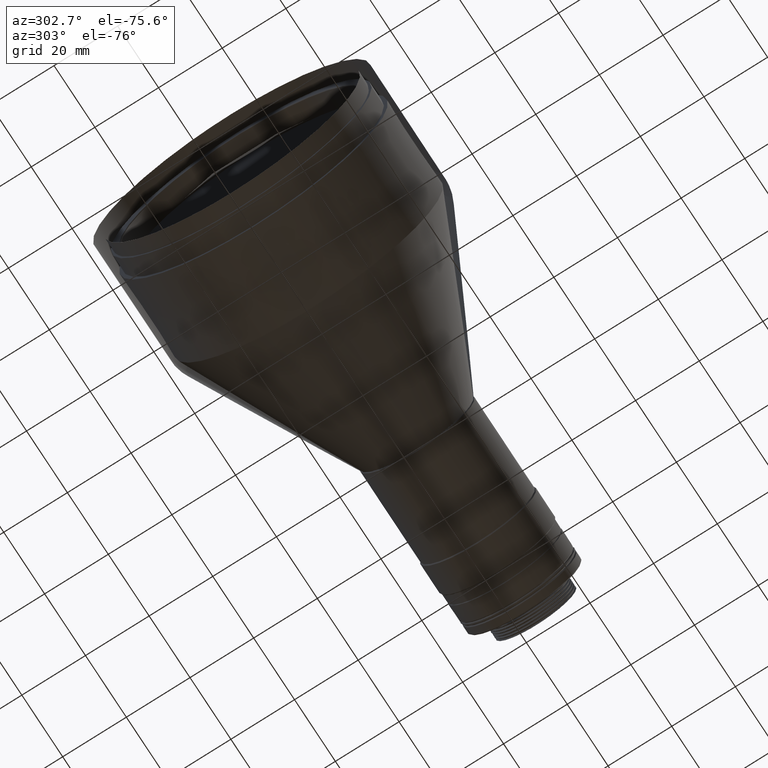
[diagram: clean part render]
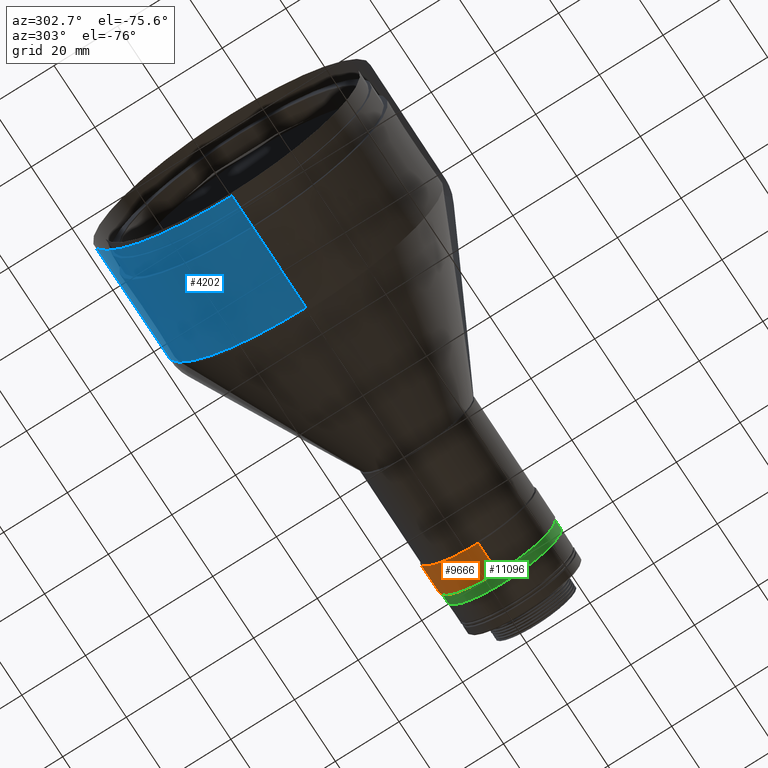
[diagram: same view with three faces highlighted in distinct colors, each labeled with its STEP entity id]
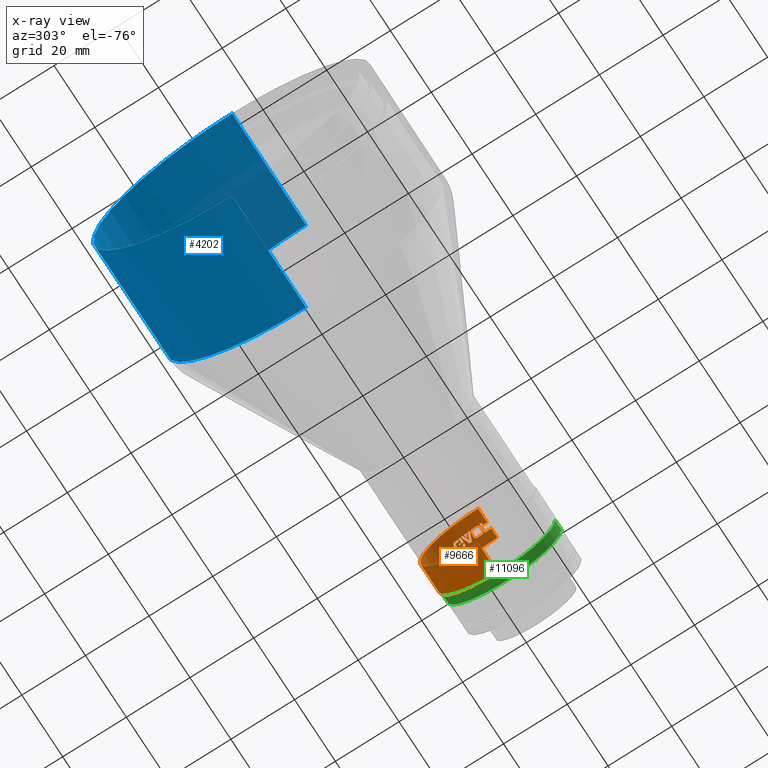
[diagram: x-ray of the same camera — body ghosted, the three highlighted faces saturated]
A machine part, auxiliary view with three faces highlighted in distinct colors.
The next image is the same camera in x-ray (body ghosted, the three faces saturated) — at least one of them is partly hidden behind the body in this view.
Their STEP definitions:

[orange] entity #9666 — the highlighted cylindrical surface (partial cylindrical patch) has radius 18.3 mm, axis along (-1, 0, 0).
#42 = B_SPLINE_CURVE_WITH_KNOTS ( 'NONE', 3,
 ( #12602, #5729, #9702, #17199 ),
 .UNSPECIFIED., .F., .F.,
 ( 4, 4 ),
 ( 0.000000000000000000, 1.000000000000000000 ),
 .UNSPECIFIED. ) ;
#71 = AXIS2_PLACEMENT_3D ( 'NONE', #16042, #13226, #6352 ) ;
#104 = EDGE_CURVE ( 'NONE', #843, #14046, #14184, .T. ) ;
#110 = AXIS2_PLACEMENT_3D ( 'NONE', #4049, #8036, #13561 ) ;
#120 = CARTESIAN_POINT ( 'NONE',  ( 100.7632620795060063, 0.000000000000000000, -164.1114151905999847 ) ) ;
#139 = CARTESIAN_POINT ( 'NONE',  ( 102.8743018644679950, 8.528150323485460760, -147.9199255395949990 ) ) ;
#151 = ORIENTED_EDGE ( 'NONE', *, *, #15214, .T. ) ;
#171 = EDGE_CURVE ( 'NONE', #1035, #7588, #17414, .T. ) ;
#177 = LINE ( 'NONE', #13703, #7770 ) ;
#194 = CARTESIAN_POINT ( 'NONE',  ( 102.6118750167230047, 10.29167852791900017, -148.9795937223560145 ) ) ;
#281 = CARTESIAN_POINT ( 'NONE',  ( 100.1089844205969968, 7.189930660093979853, -147.2830196312179964 ) ) ;
#288 = DIRECTION ( 'NONE',  ( 1.000000000000000000, 0.000000000000000000, 0.000000000000000000 ) ) ;
#289 = CARTESIAN_POINT ( 'NONE',  ( 100.0964237283589995, 8.390223324382139580, -147.8480914516069902 ) ) ;
#377 = EDGE_CURVE ( 'NONE', #4686, #3876, #5925, .T. ) ;
#384 = VECTOR ( 'NONE', #16121, 1000.000000000000000 ) ;
#390 = EDGE_LOOP ( 'NONE', ( #2038, #17502, #14480, #11624, #5679, #10705, #4203, #13072, #12017, #2115, #7776, #14713, #17401, #10926, #1613, #13952, #13956, #11203, #3936, #3910, #11891, #2723, #15824, #7506, #7697, #14281, #16492, #3537, #639, #15063, #11163, #1993, #1504, #4459, #13444, #5198, #601, #151, #13745, #4707, #6434, #10196, #3749, #4262, #14922, #13382, #5724, #4113 ) ) ;
#404 = DIRECTION ( 'NONE',  ( 0.000000000000000000, 1.000000000000000000, 0.000000000000000000 ) ) ;
#422 = CARTESIAN_POINT ( 'NONE',  ( 102.2467579689899964, 8.709888326082769083, -148.0170731615770023 ) ) ;
#425 = ORIENTED_EDGE ( 'NONE', *, *, #2554, .F. ) ;
#505 = CARTESIAN_POINT ( 'NONE',  ( 100.1916335592290039, 10.10985802576269776, -148.8574712567010181 ) ) ;
#601 = ORIENTED_EDGE ( 'NONE', *, *, #6723, .F. ) ;
#611 = B_SPLINE_CURVE_WITH_KNOTS ( 'NONE', 3,
 ( #2748, #6748, #12270, #17787, #13801, #12528, #13538 ),
 .UNSPECIFIED., .F., .F.,
 ( 4, 3, 4 ),
 ( 0.000000000000000000, 0.5371044954788599668, 1.000000000000000000 ),
 .UNSPECIFIED. ) ;
#625 = EDGE_CURVE ( 'NONE', #759, #16035, #13048, .T. ) ;
#639 = ORIENTED_EDGE ( 'NONE', *, *, #2388, .F. ) ;
#646 = ORIENTED_EDGE ( 'NONE', *, *, #4485, .F. ) ;
#695 = LINE ( 'NONE', #2343, #12071 ) ;
#701 = DIRECTION ( 'NONE',  ( 0.000000000000000000, 0.000000000000000000, -1.000000000000000000 ) ) ;
#705 = DIRECTION ( 'NONE',  ( -1.000000000000000000, 0.000000000000000000, 0.000000000000000000 ) ) ;
#727 = VERTEX_POINT ( 'NONE', #988 ) ;
#757 = EDGE_CURVE ( 'NONE', #16893, #2960, #12413, .T. ) ;
#759 = VERTEX_POINT ( 'NONE', #11489 ) ;
#795 = CARTESIAN_POINT ( 'NONE',  ( 100.1198213330409885, 4.519559256768309830, -146.3780291060450054 ) ) ;
#828 = VERTEX_POINT ( 'NONE', #15582 ) ;
#843 = VERTEX_POINT ( 'NONE', #15396 ) ;
#848 = CARTESIAN_POINT ( 'NONE',  ( 100.7186355224200014, 9.511258629570690459, -148.4772871598649999 ) ) ;
#850 = EDGE_CURVE ( 'NONE', #1365, #895, #6573, .T. ) ;
#873 = B_SPLINE_CURVE_WITH_KNOTS ( 'NONE', 3,
 ( #1672, #4571, #12808, #3299, #12543, #15359, #10099 ),
 .UNSPECIFIED., .F., .F.,
 ( 4, 3, 4 ),
 ( 0.000000000000000000, 0.7526771078445499974, 1.000000000000000000 ),
 .UNSPECIFIED. ) ;
#883 = CARTESIAN_POINT ( 'NONE',  ( 101.0448635702319962, 10.44140764673980115, -149.0825427658290039 ) ) ;
#895 = VERTEX_POINT ( 'NONE', #10303 ) ;
#898 = CARTESIAN_POINT ( 'NONE',  ( 100.7280848985249975, 2.134636950281200374, -145.9363409104080063 ) ) ;
#899 = CARTESIAN_POINT ( 'NONE',  ( 100.8697853588460021, 5.062855839229440491, -146.5256956663790220 ) ) ;
#988 = CARTESIAN_POINT ( 'NONE',  ( 100.7632620795060063, 1.331704470869410128, -145.8599340670780009 ) ) ;
#989 = CARTESIAN_POINT ( 'NONE',  ( 102.7425010441759952, 10.16824569376739795, -148.8963969680939954 ) ) ;
#1005 = CARTESIAN_POINT ( 'NONE',  ( 102.3922387243129890, 5.008360828531480458, -146.5100686046539806 ) ) ;
#1008 = ORIENTED_EDGE ( 'NONE', *, *, #12978, .F. ) ;
#1021 = CARTESIAN_POINT ( 'NONE',  ( 100.7216978019200013, 9.605967678771829554, -148.5352354824769918 ) ) ;
#1035 = VERTEX_POINT ( 'NONE', #3605 ) ;
#1082 = AXIS2_PLACEMENT_3D ( 'NONE', #12575, #16760, #4335 ) ;
#1092 = CARTESIAN_POINT ( 'NONE',  ( 100.3562033931540043, 7.978667687339940251, -147.6423264997960132 ) ) ;
#1124 = VERTEX_POINT ( 'NONE', #2696 ) ;
#1128 = EDGE_CURVE ( 'NONE', #15679, #843, #10860, .T. ) ;
#1129 = CARTESIAN_POINT ( 'NONE',  ( 102.7747051612779927, 4.680447156109570628, -146.4200779200920124 ) ) ;
#1140 = CARTESIAN_POINT ( 'NONE',  ( 100.0989479097609944, 9.828574037927699791, -148.6746140126890054 ) ) ;
#1145 = VERTEX_POINT ( 'NONE', #13749 ) ;
#1149 = CARTESIAN_POINT ( 'NONE',  ( 101.9646573933180065, 9.891853714650089557, -148.7152718394889916 ) ) ;
#1159 = CARTESIAN_POINT ( 'NONE',  ( 102.5586108909060101, 4.922911562353800008, -146.4860090463649840 ) ) ;
#1168 = CARTESIAN_POINT ( 'NONE',  ( 100.2398215683770104, 2.410441740576969583, -145.9708592284669919 ) ) ;
#1187 = CARTESIAN_POINT ( 'NONE',  ( 102.5586108909060101, 4.922911562353800008, -146.4860090463649840 ) ) ;
#1199 = VERTEX_POINT ( 'NONE', #11117 ) ;
#1214 = EDGE_CURVE ( 'NONE', #895, #12228, #5261, .T. ) ;
#1239 = CARTESIAN_POINT ( 'NONE',  ( 100.1560619331730067, 4.613370965392369349, -146.4024680639160181 ) ) ;
#1283 = CARTESIAN_POINT ( 'NONE',  ( 102.6845438670549981, 2.402258260651429556, -145.9697451099260093 ) ) ;
#1287 = EDGE_CURVE ( 'NONE', #14046, #9574, #5893, .T. ) ;
#1293 = CARTESIAN_POINT ( 'NONE',  ( 102.1917843741890124, 10.43256405716019941, -149.0764014220119975 ) ) ;
#1294 = B_SPLINE_CURVE_WITH_KNOTS ( 'NONE', 3,
 ( #6609, #17473, #8293, #7963, #13828, #13910, #3799 ),
 .UNSPECIFIED., .F., .F.,
 ( 4, 3, 4 ),
 ( 0.000000000000000000, 0.6905070336917880081, 1.000000000000000000 ),
 .UNSPECIFIED. ) ;
#1312 = EDGE_CURVE ( 'NONE', #10129, #4016, #12080, .T. ) ;
#1314 = CARTESIAN_POINT ( 'NONE',  ( 100.5384541288199927, 7.928597962532109911, -147.6181640147850089 ) ) ;
#1343 = CARTESIAN_POINT ( 'NONE',  ( 100.8621961041399828, 2.118835802793479939, -145.9344850878260047 ) ) ;
#1345 = DIRECTION ( 'NONE',  ( 0.000000000000000000, 0.5060578326733441434, 0.8624995478201468169 ) ) ;
#1365 = VERTEX_POINT ( 'NONE', #14637 ) ;
#1384 = VERTEX_POINT ( 'NONE', #17440 ) ;
#1387 = CARTESIAN_POINT ( 'NONE',  ( 102.1243072040730056, 10.43858065948589875, -149.0805789980220197 ) ) ;
#1504 = ORIENTED_EDGE ( 'NONE', *, *, #14749, .F. ) ;
#1511 = CARTESIAN_POINT ( 'NONE',  ( 101.0278913623160122, 7.514458924936579187, -147.4216755592690049 ) ) ;
#1513 = CARTESIAN_POINT ( 'NONE',  ( 101.8100518647509887, 9.910718684121999189, -148.7274087175059947 ) ) ;
#1558 = CARTESIAN_POINT ( 'NONE',  ( 100.9725467237539931, 9.901934156143989085, -148.7217517768289667 ) ) ;
#1559 = CARTESIAN_POINT ( 'NONE',  ( 102.0926756618369922, 8.489245325024690203, -147.8996073391739969 ) ) ;
#1599 = CARTESIAN_POINT ( 'NONE',  ( 101.9467981822899958, 7.191201402513899055, -147.2798637385010352 ) ) ;
#1610 = CYLINDRICAL_SURFACE ( 'NONE', #1082, 18.30000000000001137 ) ;
#1613 = ORIENTED_EDGE ( 'NONE', *, *, #17269, .T. ) ;
#1641 = DIRECTION ( 'NONE',  ( 0.000000000000000000, 0.3786747113300981127, 0.9255298282600441517 ) ) ;
#1650 = ORIENTED_EDGE ( 'NONE', *, *, #16280, .F. ) ;
#1672 = CARTESIAN_POINT ( 'NONE',  ( 100.1394311975259939, 8.222536285641409037, -147.7627180855919846 ) ) ;
#1686 = VERTEX_POINT ( 'NONE', #3381 ) ;
#1699 = DIRECTION ( 'NONE',  ( -1.000000000000000000, 0.000000000000000000, 0.000000000000000000 ) ) ;
#1712 = CARTESIAN_POINT ( 'NONE',  ( 100.5716284828170046, 5.027530739406910421, -146.5155652632930128 ) ) ;
#1728 = CARTESIAN_POINT ( 'NONE',  ( 101.8218432512140055, 6.579976963771860810, -147.0352943443350284 ) ) ;
#1774 = CARTESIAN_POINT ( 'NONE',  ( 105.7747024799580089, 0.000000000000000000, -164.1114151905999847 ) ) ;
#1779 = CARTESIAN_POINT ( 'NONE',  ( 102.5901189576400014, 7.989846973555489562, -147.6477204817949769 ) ) ;
#1812 = EDGE_CURVE ( 'NONE', #13519, #1035, #42, .T. ) ;
#1836 = VERTEX_POINT ( 'NONE', #2832 ) ;
#1868 = EDGE_CURVE ( 'NONE', #9410, #9081, #10932, .T. ) ;
#1872 =( BOUNDED_CURVE ( )  B_SPLINE_CURVE ( 3, ( #9629, #15164, #11267, #16796 ),
 .UNSPECIFIED., .F., .T. ) 
 B_SPLINE_CURVE_WITH_KNOTS ( ( 4, 4 ),
 ( 0.01574231789891546163, 0.02169292536751399672 ),
 .UNSPECIFIED. ) 
 CURVE ( )  GEOMETRIC_REPRESENTATION_ITEM ( )  RATIONAL_B_SPLINE_CURVE ( ( 1.000000000000000000, 0.9999970491914063064, 0.9999970491914063064, 1.000000000000000000 ) ) 
 REPRESENTATION_ITEM ( '' )  );
#1888 = CARTESIAN_POINT ( 'NONE',  ( 102.4845537787170002, 7.934491165200278751, -147.6209969087659886 ) ) ;
#1913 = VERTEX_POINT ( 'NONE', #10405 ) ;
#1973 = B_SPLINE_CURVE_WITH_KNOTS ( 'NONE', 3,
 ( #13377, #5234, #16287, #3870, #13565, #1140, #6495, #12205, #4874, #12015 ),
 .UNSPECIFIED., .F., .F.,
 ( 4, 3, 3, 4 ),
 ( 0.000000000000000000, 0.4434636792968669750, 0.8865889774311809246, 1.000000000000000000 ),
 .UNSPECIFIED. ) ;
#1993 = ORIENTED_EDGE ( 'NONE', *, *, #1812, .F. ) ;
#2022 = EDGE_CURVE ( 'NONE', #13474, #16443, #3723, .T. ) ;
#2038 = ORIENTED_EDGE ( 'NONE', *, *, #13593, .F. ) ;
#2096 = CARTESIAN_POINT ( 'NONE',  ( 100.1691920007129966, 2.523808301357460149, -145.9861557601660138 ) ) ;
#2109 = CARTESIAN_POINT ( 'NONE',  ( 101.1613430208689977, 9.910718684121999189, -148.7274087175059947 ) ) ;
#2114 = CARTESIAN_POINT ( 'NONE',  ( 100.7280848985249975, 2.134636950281200374, -145.9363409104080063 ) ) ;
#2115 = ORIENTED_EDGE ( 'NONE', *, *, #3862, .F. ) ;
#2140 = EDGE_CURVE ( 'NONE', #4174, #727, #11215, .T. ) ;
#2180 = B_SPLINE_CURVE_WITH_KNOTS ( 'NONE', 3,
 ( #16678, #7165, #8249, #5540, #8522, #2995 ),
 .UNSPECIFIED., .F., .F.,
 ( 4, 2, 4 ),
 ( -0.1835193028626630196, -0.09175965142959678633, 0.000000000000000000 ),
 .UNSPECIFIED. ) ;
#2221 = CARTESIAN_POINT ( 'NONE',  ( 100.7665071087909894, 9.761957752274248890, -148.6325851042269903 ) ) ;
#2249 = B_SPLINE_CURVE_WITH_KNOTS ( 'NONE', 3,
 ( #9780, #15316, #9512, #11140, #8427, #6716, #13946 ),
 .UNSPECIFIED., .F., .F.,
 ( 4, 3, 4 ),
 ( 0.000000000000000000, 0.5186201318372160030, 1.000000000000000000 ),
 .UNSPECIFIED. ) ;
#2250 = VECTOR ( 'NONE', #288, 1000.000000000000000 ) ;
#2267 = AXIS2_PLACEMENT_3D ( 'NONE', #9077, #3368, #7717 ) ;
#2297 = CARTESIAN_POINT ( 'NONE',  ( 102.1644921040879979, 2.130717825119339714, -145.9358810430239828 ) ) ;
#2343 = CARTESIAN_POINT ( 'NONE',  ( 101.9473854950080067, 5.087292775175139781, -146.5327505024150128 ) ) ;
#2369 = CARTESIAN_POINT ( 'NONE',  ( 102.2467579689899964, 9.467700806679069103, -148.4508710929250128 ) ) ;
#2378 = CARTESIAN_POINT ( 'NONE',  ( 100.4525042233089920, 2.205789160063599930, -145.9448071472329787 ) ) ;
#2388 = EDGE_CURVE ( 'NONE', #3016, #17303, #8286, .T. ) ;
#2394 = ORIENTED_EDGE ( 'NONE', *, *, #10550, .T. ) ;
#2407 = CIRCLE ( 'NONE', #71, 18.30000000000000071 ) ;
#2431 = CARTESIAN_POINT ( 'NONE',  ( 101.9508752777189926, 8.470322409416390030, -147.8897124969699917 ) ) ;
#2459 = AXIS2_PLACEMENT_3D ( 'NONE', #14946, #4983, #7882 ) ;
#2467 = CARTESIAN_POINT ( 'NONE',  ( 100.6297812408240020, 2.149340161942709493, -145.9380706273029773 ) ) ;
#2528 = DIRECTION ( 'NONE',  ( -1.000000000000000000, 0.000000000000000000, 0.000000000000000000 ) ) ;
#2554 = EDGE_CURVE ( 'NONE', #4740, #10257, #3489, .T. ) ;
#2583 = CARTESIAN_POINT ( 'NONE',  ( 102.8144481100179917, 2.645752216615020025, -146.0036195866919684 ) ) ;
#2590 = VERTEX_POINT ( 'NONE', #17074 ) ;
#2622 = EDGE_CURVE ( 'NONE', #1836, #9094, #873, .T. ) ;
#2625 = EDGE_CURVE ( 'NONE', #15258, #727, #3022, .T. ) ;
#2627 = DIRECTION ( 'NONE',  ( -1.000000000000000000, 0.000000000000000000, 0.000000000000000000 ) ) ;
#2639 = FACE_BOUND ( 'NONE', #12370, .T. ) ;
#2657 = VERTEX_POINT ( 'NONE', #14534 ) ;
#2660 = ORIENTED_EDGE ( 'NONE', *, *, #2775, .T. ) ;
#2672 = CARTESIAN_POINT ( 'NONE',  ( 102.8254844943949990, 2.700047652756349947, -146.0115918516640079 ) ) ;
#2684 = CARTESIAN_POINT ( 'NONE',  ( 100.7665071087909894, 9.761957752274248890, -148.6325851042269903 ) ) ;
#2696 = CARTESIAN_POINT ( 'NONE',  ( 101.1674839823859884, 8.470322409416379372, -147.8897124969699917 ) ) ;
#2719 = VERTEX_POINT ( 'NONE', #4751 ) ;
#2723 = ORIENTED_EDGE ( 'NONE', *, *, #8968, .F. ) ;
#2732 = ORIENTED_EDGE ( 'NONE', *, *, #10259, .F. ) ;
#2748 = CARTESIAN_POINT ( 'NONE',  ( 102.2467579689899964, 8.709888326082769083, -148.0170731615770023 ) ) ;
#2765 = CARTESIAN_POINT ( 'NONE',  ( 100.3666467736530024, 7.974605387554849933, -147.6403597018710059 ) ) ;
#2775 = EDGE_CURVE ( 'NONE', #3268, #2657, #16193, .T. ) ;
#2810 = CARTESIAN_POINT ( 'NONE',  ( 102.8420409635349984, 0.000000000000000000, -164.1114151905999847 ) ) ;
#2824 = EDGE_LOOP ( 'NONE', ( #12472, #2394, #11679, #11715, #11014, #12620, #13453, #2732, #11013, #425, #11753 ) ) ;
#2832 = CARTESIAN_POINT ( 'NONE',  ( 100.1394311975259939, 8.222536285641409037, -147.7627180855919846 ) ) ;
#2885 = CARTESIAN_POINT ( 'NONE',  ( 100.1560619331730067, 4.613370965392369349, -146.4024680639160181 ) ) ;
#2939 = CARTESIAN_POINT ( 'NONE',  ( 102.7425010441759952, 10.16824569376739795, -148.8963969680939954 ) ) ;
#2955 = EDGE_CURVE ( 'NONE', #7266, #7075, #7793, .T. ) ;
#2960 = VERTEX_POINT ( 'NONE', #16700 ) ;
#2967 = CARTESIAN_POINT ( 'NONE',  ( 102.5334093284119916, 2.266419169477470241, -145.9523033139630002 ) ) ;
#2989 = CARTESIAN_POINT ( 'NONE',  ( 100.4805188711810047, 4.991123929021879846, -146.5051784294859942 ) ) ;
#2995 = CARTESIAN_POINT ( 'NONE',  ( 100.1089844203950037, 5.716170716601729929, -146.7270718800619989 ) ) ;
#3012 = VECTOR ( 'NONE', #2528, 1000.000000000000000 ) ;
#3016 = VERTEX_POINT ( 'NONE', #8982 ) ;
#3022 = CIRCLE ( 'NONE', #3306, 18.29999999999999361 ) ;
#3056 = CARTESIAN_POINT ( 'NONE',  ( 102.8749322044140087, 8.581766233005659217, -147.9483929384950045 ) ) ;
#3098 = CIRCLE ( 'NONE', #14678, 18.29999999999998650 ) ;
#3100 = CARTESIAN_POINT ( 'NONE',  ( 101.8218432512140055, 6.579976963771860810, -147.0352943443350284 ) ) ;
#3104 = EDGE_CURVE ( 'NONE', #17244, #15099, #5120, .T. ) ;
#3149 = CARTESIAN_POINT ( 'NONE',  ( 102.2213097352689886, 9.689098918384971171, -148.5868573302730340 ) ) ;
#3201 = VERTEX_POINT ( 'NONE', #12327 ) ;
#3231 = CARTESIAN_POINT ( 'NONE',  ( 102.4976999873420027, 7.940545731388700013, -147.6239128482890237 ) ) ;
#3245 = VECTOR ( 'NONE', #12186, 1000.000000000000114 ) ;
#3252 = CARTESIAN_POINT ( 'NONE',  ( 101.1432106362680088, 2.108736188243430121, -145.9333176089389781 ) ) ;
#3268 = VERTEX_POINT ( 'NONE', #14225 ) ;
#3272 = EDGE_CURVE ( 'NONE', #7080, #15815, #17853, .T. ) ;
#3283 = CARTESIAN_POINT ( 'NONE',  ( 102.8750899860199866, 8.607466185311011486, -147.9620645575639912 ) ) ;
#3299 = CARTESIAN_POINT ( 'NONE',  ( 100.2104349188180095, 8.097829905905479464, -147.7005909938989987 ) ) ;
#3306 = AXIS2_PLACEMENT_3D ( 'NONE', #120, #5664, #11283 ) ;
#3327 = CARTESIAN_POINT ( 'NONE',  ( 105.7747024799580089, 0.000000000000000000, -145.8114151906316351 ) ) ;
#3337 = CARTESIAN_POINT ( 'NONE',  ( 102.4976999873420027, 7.940545731388700013, -147.6239128482890237 ) ) ;
#3368 = DIRECTION ( 'NONE',  ( -0.3637999292795229822, -0.8665715851796457203, 0.3416186458837549567 ) ) ;
#3378 = CARTESIAN_POINT ( 'NONE',  ( 100.6616744256339899, 7.910027601422580545, -147.6092490781560116 ) ) ;
#3381 = CARTESIAN_POINT ( 'NONE',  ( 102.8362902746169993, 10.00311057268029913, -148.7873237372470214 ) ) ;
#3395 = EDGE_CURVE ( 'NONE', #10257, #2719, #3098, .T. ) ;
#3419 = VECTOR ( 'NONE', #13962, 1000.000000000000000 ) ;
#3469 = EDGE_CURVE ( 'NONE', #14753, #8177, #1294, .T. ) ;
#3489 = B_SPLINE_CURVE_WITH_KNOTS ( 'NONE', 3,
 ( #5926, #4302, #14351, #4476 ),
 .UNSPECIFIED., .F., .F.,
 ( 4, 4 ),
 ( 0.9872417564918244404, 1.000000000000000000 ),
 .UNSPECIFIED. ) ;
#3526 = CARTESIAN_POINT ( 'NONE',  ( 100.9346984426180001, 10.43663338147029940, -149.0792224955579854 ) ) ;
#3537 = ORIENTED_EDGE ( 'NONE', *, *, #3949, .T. ) ;
#3547 = CARTESIAN_POINT ( 'NONE',  ( 100.8409893161449986, 8.480525085782490535, -147.8950391719339734 ) ) ;
#3558 = CARTESIAN_POINT ( 'NONE',  ( 100.6765135203169876, 2.140877584352599783, -145.9370738641160017 ) ) ;
#3587 = DIRECTION ( 'NONE',  ( 0.004361628967964821350, 0.3418958823302709060, 0.9397277168618319854 ) ) ;
#3605 = CARTESIAN_POINT ( 'NONE',  ( 101.1614825881759856, 7.899276877950119236, -147.6041009085770099 ) ) ;
#3609 = CARTESIAN_POINT ( 'NONE',  ( 101.9473854950080067, 5.087292775175139781, -146.5327505024150128 ) ) ;
#3619 = CARTESIAN_POINT ( 'NONE',  ( 102.6468043984570073, 4.850505445489539547, -146.4659456042370209 ) ) ;
#3626 = VERTEX_POINT ( 'NONE', #14355 ) ;
#3632 = B_SPLINE_CURVE_WITH_KNOTS ( 'NONE', 3,
 ( #8462, #17796, #11091, #7013, #6756, #15259, #2939 ),
 .UNSPECIFIED., .F., .F.,
 ( 4, 3, 4 ),
 ( 0.000000000000000000, 0.6164676995987690145, 1.000000000000000000 ),
 .UNSPECIFIED. ) ;
#3645 = CARTESIAN_POINT ( 'NONE',  ( 101.8649553843520010, 2.108736188243430121, -145.9333176089389781 ) ) ;
#3680 = CARTESIAN_POINT ( 'NONE',  ( 101.9802177140630022, 5.087219913633290069, -146.5327294161720033 ) ) ;
#3698 = CIRCLE ( 'NONE', #5136, 18.29999999999999716 ) ;
#3723 = B_SPLINE_CURVE_WITH_KNOTS ( 'NONE', 3,
 ( #3884, #9314, #9228, #17466 ),
 .UNSPECIFIED., .F., .F.,
 ( 4, 4 ),
 ( 0.000000000000000000, 1.000000000000000000 ),
 .UNSPECIFIED. ) ;
#3743 = CIRCLE ( 'NONE', #6915, 18.30000000000001137 ) ;
#3749 = ORIENTED_EDGE ( 'NONE', *, *, #12956, .F. ) ;
#3765 = CARTESIAN_POINT ( 'NONE',  ( 100.7540124293969939, 9.738879019928479153, -148.6180541790180030 ) ) ;
#3799 = CARTESIAN_POINT ( 'NONE',  ( 102.8485721976509950, 8.336173842669891698, -147.8203683959710020 ) ) ;
#3800 = CARTESIAN_POINT ( 'NONE',  ( 100.7223085517739918, 8.652292102834600485, -147.9859989603979784 ) ) ;
#3830 = CIRCLE ( 'NONE', #7880, 18.30000000000000071 ) ;
#3835 = CARTESIAN_POINT ( 'NONE',  ( 102.7425472949400103, 2.478736438250449758, -145.9800648363190021 ) ) ;
#3843 = ORIENTED_EDGE ( 'NONE', *, *, #3104, .T. ) ;
#3846 = CARTESIAN_POINT ( 'NONE',  ( 102.2529273239980085, 10.42195112863590012, -149.0690303141159632 ) ) ;
#3850 = EDGE_CURVE ( 'NONE', #9729, #9035, #611, .T. ) ;
#3862 = EDGE_CURVE ( 'NONE', #17190, #1365, #12706, .T. ) ;
#3870 = CARTESIAN_POINT ( 'NONE',  ( 100.1181691182290052, 9.937217670885569731, -148.7445122833310336 ) ) ;
#3876 = VERTEX_POINT ( 'NONE', #15521 ) ;
#3884 = CARTESIAN_POINT ( 'NONE',  ( 102.5567369582889938, 10.32378084937209906, -149.0014996059869929 ) ) ;
#3896 = ORIENTED_EDGE ( 'NONE', *, *, #14293, .F. ) ;
#3900 = CARTESIAN_POINT ( 'NONE',  ( 101.3099226159989996, 6.448242953780940034, -146.9851148659820126 ) ) ;
#3908 = EDGE_CURVE ( 'NONE', #14259, #13474, #5603, .T. ) ;
#3910 = ORIENTED_EDGE ( 'NONE', *, *, #16510, .F. ) ;
#3933 = CARTESIAN_POINT ( 'NONE',  ( 101.1674839823859884, 9.260858337922210026, -148.3276734654909887 ) ) ;
#3936 = ORIENTED_EDGE ( 'NONE', *, *, #1128, .F. ) ;
#3947 = VECTOR ( 'NONE', #14100, 1000.000000000000000 ) ;
#3949 = EDGE_CURVE ( 'NONE', #1124, #17303, #3698, .T. ) ;
#4016 = VERTEX_POINT ( 'NONE', #3900 ) ;
#4049 = CARTESIAN_POINT ( 'NONE',  ( 101.3099226159989996, 0.000000000000000000, -164.1114151905999847 ) ) ;
#4050 = CARTESIAN_POINT ( 'NONE',  ( 101.0278913676430079, 5.388391726655820335, -146.6189785063699844 ) ) ;
#4059 = EDGE_CURVE ( 'NONE', #11771, #13994, #695, .T. ) ;
#4067 = B_SPLINE_CURVE_WITH_KNOTS ( 'NONE', 3,
 ( #10733, #15094, #16457, #9642, #8284, #14824, #1129, #15181, #6842, #13729 ),
 .UNSPECIFIED., .F., .F.,
 ( 4, 3, 3, 4 ),
 ( 0.000000000000000000, 0.4357707669419049745, 0.8718250801742020162, 1.000000000000000000 ),
 .UNSPECIFIED. ) ;
#4076 = EDGE_CURVE ( 'NONE', #9684, #15805, #4959, .T. ) ;
#4113 = ORIENTED_EDGE ( 'NONE', *, *, #3908, .F. ) ;
#4139 = CARTESIAN_POINT ( 'NONE',  ( 100.8838832141489945, 9.872909186747149235, -148.7031166411090055 ) ) ;
#4165 = CARTESIAN_POINT ( 'NONE',  ( 101.1674839823859884, 0.000000000000000000, -164.1114151905999847 ) ) ;
#4174 = VERTEX_POINT ( 'NONE', #13750 ) ;
#4201 = B_SPLINE_CURVE_WITH_KNOTS ( 'NONE', 3,
 ( #5704, #8697, #10223, #1712, #5969, #2989, #7246, #11494, #17034, #10049 ),
 .UNSPECIFIED., .F., .F.,
 ( 4, 3, 3, 4 ),
 ( 0.000000000000000000, 0.3959766093915469964, 0.7919420350095109917, 1.000000000000000000 ),
 .UNSPECIFIED. ) ;
#4203 = ORIENTED_EDGE ( 'NONE', *, *, #10143, .F. ) ;
#4218 = CARTESIAN_POINT ( 'NONE',  ( 100.3666467736530024, 7.974605387554849933, -147.6403597018710059 ) ) ;
#4242 = VERTEX_POINT ( 'NONE', #1239 ) ;
#4262 = ORIENTED_EDGE ( 'NONE', *, *, #9593, .F. ) ;
#4280 = CARTESIAN_POINT ( 'NONE',  ( 102.1077316497200087, 8.493706322637901707, -147.9019437723600277 ) ) ;
#4284 = CARTESIAN_POINT ( 'NONE',  ( 102.6740709105509950, 10.24237594981569899, -148.9461630571359763 ) ) ;
#4302 = CARTESIAN_POINT ( 'NONE',  ( 102.8198936316461385, 0.001979452609515434686, -145.8114151919623680 ) ) ;
#4327 = DIRECTION ( 'NONE',  ( 1.000000000000000000, 0.000000000000000000, 0.000000000000000000 ) ) ;
#4335 = DIRECTION ( 'NONE',  ( 0.000000000000000000, 0.000000000000000000, 1.000000000000000000 ) ) ;
#4350 = EDGE_CURVE ( 'NONE', #8177, #17390, #8626, .T. ) ;
#4362 = CARTESIAN_POINT ( 'NONE',  ( 100.1056336675059981, 0.000000000000000000, -164.1114151905999847 ) ) ;
#4367 = CARTESIAN_POINT ( 'NONE',  ( 101.3099226159989996, 6.492171333115729581, -147.0017187765350002 ) ) ;
#4372 = CARTESIAN_POINT ( 'NONE',  ( 100.0964980565950100, 2.812677005270409758, -146.0287867716779999 ) ) ;
#4374 = EDGE_CURVE ( 'NONE', #6347, #8173, #14647, .T. ) ;
#4457 = CARTESIAN_POINT ( 'NONE',  ( 101.1613430208689977, 9.910718684121999189, -148.7274087175059947 ) ) ;
#4459 = ORIENTED_EDGE ( 'NONE', *, *, #7836, .F. ) ;
#4476 = CARTESIAN_POINT ( 'NONE',  ( 102.8199020909270018, 0.005950368817242820442, -145.8114161580010091 ) ) ;
#4485 = EDGE_CURVE ( 'NONE', #15815, #17586, #4067, .T. ) ;
#4553 = CARTESIAN_POINT ( 'NONE',  ( 100.1150268283070091, 2.668515576266970335, -146.0069860348890245 ) ) ;
#4564 = ORIENTED_EDGE ( 'NONE', *, *, #9485, .F. ) ;
#4571 = CARTESIAN_POINT ( 'NONE',  ( 100.1612778551969996, 8.174545391837508390, -147.7385811856819657 ) ) ;
#4602 = CIRCLE ( 'NONE', #14734, 18.59825179139969364 ) ;
#4610 = VERTEX_POINT ( 'NONE', #6015 ) ;
#4680 = CARTESIAN_POINT ( 'NONE',  ( 102.8657051240089970, 6.864114906391109550, -147.1475145026139728 ) ) ;
#4682 = AXIS2_PLACEMENT_3D ( 'NONE', #10137, #8781, #14312 ) ;
#4686 = VERTEX_POINT ( 'NONE', #10179 ) ;
#4707 = ORIENTED_EDGE ( 'NONE', *, *, #13228, .F. ) ;
#4740 = VERTEX_POINT ( 'NONE', #12172 ) ;
#4751 = CARTESIAN_POINT ( 'NONE',  ( 102.8199020909270018, 1.962378876960159779, -145.9169361064590191 ) ) ;
#4759 = CARTESIAN_POINT ( 'NONE',  ( 101.9508752777189926, 7.904689944899729426, -147.6066923248560272 ) ) ;
#4760 = EDGE_CURVE ( 'NONE', #5698, #14898, #6436, .T. ) ;
#4778 = CARTESIAN_POINT ( 'NONE',  ( 102.8657051240089970, 6.470212469416350309, -146.9934027300189712 ) ) ;
#4808 = CARTESIAN_POINT ( 'NONE',  ( 101.8713219126129985, 10.44146824576290022, -149.0825848677600050 ) ) ;
#4874 = CARTESIAN_POINT ( 'NONE',  ( 100.0961709488289983, 9.731634386527719727, -148.6134894235529771 ) ) ;
#4891 = CARTESIAN_POINT ( 'NONE',  ( 101.1613430208689977, 10.44146824576290022, -149.0825848677600050 ) ) ;
#4936 = CARTESIAN_POINT ( 'NONE',  ( 100.7578630152460022, 9.747241134661219775, -148.6233104706440145 ) ) ;
#4951 = EDGE_CURVE ( 'NONE', #5033, #9235, #12405, .T. ) ;
#4959 = B_SPLINE_CURVE_WITH_KNOTS ( 'NONE', 3,
 ( #9040, #12023, #14844, #2431 ),
 .UNSPECIFIED., .F., .F.,
 ( 4, 4 ),
 ( 0.000000000000000000, 1.000000000000000000 ),
 .UNSPECIFIED. ) ;
#4972 = CARTESIAN_POINT ( 'NONE',  ( 100.3411017126782809, 2.291951922975918876, -145.9554249586311414 ) ) ;
#4983 = DIRECTION ( 'NONE',  ( -1.000000000000000000, 0.000000000000000000, 0.000000000000000000 ) ) ;
#5008 = B_SPLINE_CURVE_WITH_KNOTS ( 'NONE', 3,
 ( #9424, #13422, #16416, #13512, #14968, #1092, #5366 ),
 .UNSPECIFIED., .F., .F.,
 ( 4, 3, 4 ),
 ( 0.000000000000000000, 0.7962828228341850556, 1.000000000000000000 ),
 .UNSPECIFIED. ) ;
#5009 = CARTESIAN_POINT ( 'NONE',  ( 102.1993691018570019, 2.136544117037840085, -145.9365640592109798 ) ) ;
#5033 = VERTEX_POINT ( 'NONE', #6420 ) ;
#5038 = CARTESIAN_POINT ( 'NONE',  ( 100.7077781420540106, -40.75217636701889745, -276.7191788767590310 ) ) ;
#5040 = CARTESIAN_POINT ( 'NONE',  ( 102.8420409635349984, 4.331666573766999484, -146.3314639900559655 ) ) ;
#5045 = CIRCLE ( 'NONE', #17483, 18.30000000000000071 ) ;
#5080 = EDGE_CURVE ( 'NONE', #4174, #10666, #7772, .T. ) ;
#5095 = CARTESIAN_POINT ( 'NONE',  ( 102.0773513140750026, 2.116160732677149880, -145.9341745151110104 ) ) ;
#5120 = CIRCLE ( 'NONE', #13809, 18.30000000000001137 ) ;
#5124 = CARTESIAN_POINT ( 'NONE',  ( 102.7994517193790074, 2.598627663899079732, -145.9968593234410150 ) ) ;
#5136 = AXIS2_PLACEMENT_3D ( 'NONE', #4165, #2627, #1345 ) ;
#5165 = CARTESIAN_POINT ( 'NONE',  ( 102.6843315504449947, 4.813187070754750607, -146.4556872782119683 ) ) ;
#5176 = EDGE_CURVE ( 'NONE', #1199, #1913, #6034, .T. ) ;
#5198 = ORIENTED_EDGE ( 'NONE', *, *, #2622, .F. ) ;
#5234 = CARTESIAN_POINT ( 'NONE',  ( 100.1474902439989876, 10.03340601015690048, -148.8070719374670148 ) ) ;
#5261 = B_SPLINE_CURVE_WITH_KNOTS ( 'NONE', 3,
 ( #3231, #14196, #1779, #5775 ),
 .UNSPECIFIED., .F., .F.,
 ( 4, 4 ),
 ( 0.000000000000000000, 1.000000000000000000 ),
 .UNSPECIFIED. ) ;
#5277 = LINE ( 'NONE', #12665, #10064 ) ;
#5351 = VERTEX_POINT ( 'NONE', #2765 ) ;
#5362 = CIRCLE ( 'NONE', #2459, 18.30000000000000426 ) ;
#5366 = CARTESIAN_POINT ( 'NONE',  ( 100.3666467736530024, 7.974605387554849933, -147.6403597018710059 ) ) ;
#5398 = CARTESIAN_POINT ( 'NONE',  ( 102.7844475600600020, 2.551478698941620049, -145.9900955581269955 ) ) ;
#5424 = CIRCLE ( 'NONE', #7141, 18.30000000000000426 ) ;
#5435 = AXIS2_PLACEMENT_3D ( 'NONE', #5038, #13365, #3587 ) ;
#5477 = CARTESIAN_POINT ( 'NONE',  ( 105.7747024799580089, 2.241103642435780614E-15, -182.4114151905683627 ) ) ;
#5486 = DIRECTION ( 'NONE',  ( 0.000000000000000000, 0.5060578326733441434, 0.8624995478201468169 ) ) ;
#5506 = CARTESIAN_POINT ( 'NONE',  ( 100.8484749606909929, 9.850089606966550448, -148.6885187461989801 ) ) ;
#5528 = CARTESIAN_POINT ( 'NONE',  ( 101.1115320196320084, 2.108922037664130222, -145.9333391692200053 ) ) ;
#5540 = CARTESIAN_POINT ( 'NONE',  ( 100.6799469828909963, 5.924343544543230422, -146.7965605756820082 ) ) ;
#5564 = B_SPLINE_CURVE_WITH_KNOTS ( 'NONE', 3,
 ( #10238, #14419, #6350, #899, #11873, #7529 ),
 .UNSPECIFIED., .F., .F.,
 ( 4, 2, 4 ),
 ( -0.04600258706332899933, -0.02300129361626910077, -6.938893903907228378E-18 ),
 .UNSPECIFIED. ) ;
#5591 = CARTESIAN_POINT ( 'NONE',  ( 102.0446645081590020, 9.863506279801580234, -148.6970957483310087 ) ) ;
#5596 = CARTESIAN_POINT ( 'NONE',  ( 102.5036380384109975, 2.248083272427729984, -145.9500242306480118 ) ) ;
#5603 = B_SPLINE_CURVE_WITH_KNOTS ( 'NONE', 3,
 ( #7190, #5824, #4284, #11350, #194, #16885, #9811 ),
 .UNSPECIFIED., .F., .F.,
 ( 4, 3, 4 ),
 ( 0.000000000000000000, 0.5661574506863269463, 1.000000000000000000 ),
 .UNSPECIFIED. ) ;
#5633 = LINE ( 'NONE', #15332, #3419 ) ;
#5644 = CARTESIAN_POINT ( 'NONE',  ( 101.1201834427469919, 9.910682293469120552, -148.7273852738389905 ) ) ;
#5663 = CARTESIAN_POINT ( 'NONE',  ( 101.8713219126129985, 10.44146824576290022, -149.0825848677600050 ) ) ;
#5664 = DIRECTION ( 'NONE',  ( -1.000000000000000000, 0.000000000000000000, 0.000000000000000000 ) ) ;
#5679 = ORIENTED_EDGE ( 'NONE', *, *, #3469, .F. ) ;
#5688 = CARTESIAN_POINT ( 'NONE',  ( 100.0816823216460136, 0.000000000000000000, -164.1114151905999847 ) ) ;
#5698 = VERTEX_POINT ( 'NONE', #16258 ) ;
#5704 = CARTESIAN_POINT ( 'NONE',  ( 100.7169717095090107, 5.050633240869309759, -146.5221825789639922 ) ) ;
#5724 = ORIENTED_EDGE ( 'NONE', *, *, #2022, .F. ) ;
#5729 = CARTESIAN_POINT ( 'NONE',  ( 100.7776393094810032, 7.901430256192091051, -147.6051308634690145 ) ) ;
#5745 = ORIENTED_EDGE ( 'NONE', *, *, #10853, .F. ) ;
#5775 = CARTESIAN_POINT ( 'NONE',  ( 102.6251249388180042, 8.016787016597641369, -147.6608490626360322 ) ) ;
#5802 = CARTESIAN_POINT ( 'NONE',  ( 102.8657051240089970, 6.072462078126521057, -146.8482983135779989 ) ) ;
#5815 = CARTESIAN_POINT ( 'NONE',  ( 100.6799469829779952, 6.987728863681589964, -147.1977023487299903 ) ) ;
#5824 = CARTESIAN_POINT ( 'NONE',  ( 102.7086185067269923, 10.20838860753010024, -148.9232246066839878 ) ) ;
#5853 = VERTEX_POINT ( 'NONE', #4367 ) ;
#5854 = CARTESIAN_POINT ( 'NONE',  ( 102.7986071016719904, 8.200584246620639561, -147.7516958160479987 ) ) ;
#5866 = EDGE_CURVE ( 'NONE', #9035, #9684, #16677, .T. ) ;
#5893 = B_SPLINE_CURVE_WITH_KNOTS ( 'NONE', 3,
 ( #10199, #15646, #16747, #7038, #3149, #15468 ),
 .UNSPECIFIED., .F., .F.,
 ( 4, 2, 4 ),
 ( -0.01338389401661760000, -0.007169885634604809647, 0.000000000000000000 ),
 .UNSPECIFIED. ) ;
#5894 = AXIS2_PLACEMENT_3D ( 'NONE', #16025, #13121, #701 ) ;
#5921 = CARTESIAN_POINT ( 'NONE',  ( 100.7183563878050023, 7.905696933345409683, -147.6071746446650081 ) ) ;
#5925 = B_SPLINE_CURVE_WITH_KNOTS ( 'NONE', 3,
 ( #1187, #17859, #1005, #16244 ),
 .UNSPECIFIED., .F., .F.,
 ( 4, 4 ),
 ( 0.000000000000000000, 1.000000000000000000 ),
 .UNSPECIFIED. ) ;
#5926 = CARTESIAN_POINT ( 'NONE',  ( 102.8198843646308944, 3.981663340644864321E-07, -145.8114151935854181 ) ) ;
#5938 = ORIENTED_EDGE ( 'NONE', *, *, #6874, .F. ) ;
#5945 = CARTESIAN_POINT ( 'NONE',  ( 102.8673982728069944, 8.439865701562750289, -147.8738455775209673 ) ) ;
#5969 = CARTESIAN_POINT ( 'NONE',  ( 100.5251098459410031, 5.012829092186060542, -146.5113646714700053 ) ) ;
#5973 = CARTESIAN_POINT ( 'NONE',  ( 102.8657051240089970, 6.864114906391109550, -147.1475145026139728 ) ) ;
#5997 = CARTESIAN_POINT ( 'NONE',  ( 100.1251546064200113, 8.254510020685048133, -147.7787991955970028 ) ) ;
#6012 = DIRECTION ( 'NONE',  ( -0.001043101009919032230, 0.5465062322741363054, 0.8374543868329850094 ) ) ;
#6015 = CARTESIAN_POINT ( 'NONE',  ( 102.8750899860199866, 9.747196907070058813, -148.6232857859619969 ) ) ;
#6032 = CARTESIAN_POINT ( 'NONE',  ( 102.7825267130699274, 8.169350198915664052, -147.7360378695495342 ) ) ;
#6034 = CIRCLE ( 'NONE', #9216, 18.30000000000000426 ) ;
#6059 = CARTESIAN_POINT ( 'NONE',  ( 102.2304285940469981, 7.904689944899739196, -147.6066923248560272 ) ) ;
#6130 = CARTESIAN_POINT ( 'NONE',  ( 100.3018795368039946, 10.24628571499619945, -148.9488068848500006 ) ) ;
#6197 = DIRECTION ( 'NONE',  ( 0.000000000000000000, 0.2360619153589319230, 0.9717380161942171801 ) ) ;
#6260 = VERTEX_POINT ( 'NONE', #9051 ) ;
#6269 = CARTESIAN_POINT ( 'NONE',  ( 102.2630175641569963, 2.151669991189999909, -145.9383495095150067 ) ) ;
#6290 = CARTESIAN_POINT ( 'NONE',  ( 100.3538559828920000, 10.28702959686900087, -148.9764457701780032 ) ) ;
#6319 = CIRCLE ( 'NONE', #17592, 18.29999999999999716 ) ;
#6347 = VERTEX_POINT ( 'NONE', #5973 ) ;
#6350 = CARTESIAN_POINT ( 'NONE',  ( 101.0225989828879989, 5.075075684847630164, -146.5292183077740162 ) ) ;
#6351 = CARTESIAN_POINT ( 'NONE',  ( 100.1056336675059981, 0.000000000000000000, -164.1114151905999847 ) ) ;
#6352 = DIRECTION ( 'NONE',  ( 0.000000000000000000, 0.5308445534097619989, 0.8474692089481424828 ) ) ;
#6376 = CARTESIAN_POINT ( 'NONE',  ( 100.5512943210829917, 10.37845090303160056, -149.0389981033059712 ) ) ;
#6420 = CARTESIAN_POINT ( 'NONE',  ( 100.2465425429589914, 2.401031630394010019, -145.9696113356949922 ) ) ;
#6434 = ORIENTED_EDGE ( 'NONE', *, *, #6541, .F. ) ;
#6436 = B_SPLINE_CURVE_WITH_KNOTS ( 'NONE', 3,
 ( #9272, #14982, #10891, #9440, #1283, #16165, #8097 ),
 .UNSPECIFIED., .F., .F.,
 ( 4, 3, 4 ),
 ( 0.000000000000000000, 0.5669984747181380236, 1.000000000000000000 ),
 .UNSPECIFIED. ) ;
#6456 = EDGE_CURVE ( 'NONE', #10619, #12301, #6751, .T. ) ;
#6495 = CARTESIAN_POINT ( 'NONE',  ( 100.0968928983830040, 9.764731850970401084, -148.6343349789240165 ) ) ;
#6519 = CARTESIAN_POINT ( 'NONE',  ( 102.7535729785310110, 4.717361412283099575, -146.4298852424900019 ) ) ;
#6530 = CARTESIAN_POINT ( 'NONE',  ( 100.5512943210829917, 10.37845090303160056, -149.0389981033059712 ) ) ;
#6541 = EDGE_CURVE ( 'NONE', #12033, #6260, #8921, .T. ) ;
#6563 = CARTESIAN_POINT ( 'NONE',  ( 100.5512943210829917, 10.37845090303160056, -149.0389981033059712 ) ) ;
#6565 = CARTESIAN_POINT ( 'NONE',  ( 100.8972816756399880, 8.477497160989599934, -147.8934608841709917 ) ) ;
#6573 = B_SPLINE_CURVE_WITH_KNOTS ( 'NONE', 3,
 ( #6059, #15665, #8775, #8603, #16938, #1888, #3337 ),
 .UNSPECIFIED., .F., .F.,
 ( 4, 3, 4 ),
 ( 0.000000000000000000, 0.7451566664313949984, 1.000000000000000000 ),
 .UNSPECIFIED. ) ;
#6609 = CARTESIAN_POINT ( 'NONE',  ( 102.7986071016719904, 8.200584246620639561, -147.7516958160479987 ) ) ;
#6628 = CARTESIAN_POINT ( 'NONE',  ( 100.7339745146520045, 10.41822072153830092, -149.0664560782710168 ) ) ;
#6650 = EDGE_CURVE ( 'NONE', #16443, #759, #17770, .T. ) ;
#6655 = EDGE_CURVE ( 'NONE', #3268, #2590, #10423, .T. ) ;
#6694 = CARTESIAN_POINT ( 'NONE',  ( 102.0446645081590020, 9.863506279801580234, -148.6970957483310087 ) ) ;
#6698 = CARTESIAN_POINT ( 'NONE',  ( 100.3722003337269939, 4.911279891647380325, -146.4827643679790299 ) ) ;
#6716 = CARTESIAN_POINT ( 'NONE',  ( 102.2467148001599924, 9.511351990321189831, -148.4772607473339860 ) ) ;
#6723 = EDGE_CURVE ( 'NONE', #3201, #1836, #11934, .T. ) ;
#6748 = CARTESIAN_POINT ( 'NONE',  ( 102.2466090401759971, 8.669225073302630591, -147.9950671429369891 ) ) ;
#6751 = B_SPLINE_CURVE_WITH_KNOTS ( 'NONE', 3,
 ( #8060, #13488, #13586, #13911, #3800, #13398, #10678 ),
 .UNSPECIFIED., .F., .F.,
 ( 4, 3, 4 ),
 ( 0.000000000000000000, 0.5362454017759019642, 1.000000000000000000 ),
 .UNSPECIFIED. ) ;
#6756 = CARTESIAN_POINT ( 'NONE',  ( 102.7837444761550074, 10.11625357121200075, -148.8617547568629789 ) ) ;
#6772 = CARTESIAN_POINT ( 'NONE',  ( 100.8173458602170030, 9.826900204312131848, -148.6737084480880071 ) ) ;
#6779 = LINE ( 'NONE', #16651, #12686 ) ;
#6787 = CARTESIAN_POINT ( 'NONE',  ( 100.0947676071909882, 4.352448619741919877, -146.3365399164240159 ) ) ;
#6788 = EDGE_CURVE ( 'NONE', #5853, #9081, #10938, .T. ) ;
#6842 = CARTESIAN_POINT ( 'NONE',  ( 102.7610969293440064, 4.705667431563650638, -146.4267653352439993 ) ) ;
#6864 = CARTESIAN_POINT ( 'NONE',  ( 102.0193677796319918, 9.875090519431338976, -148.7045084155440122 ) ) ;
#6869 = CARTESIAN_POINT ( 'NONE',  ( 102.7261716692329969, 8.105622197633699955, -147.7044383578860050 ) ) ;
#6871 = DIRECTION ( 'NONE',  ( 0.000000000000000000, 0.1072338184131250843, 0.9942338297345051368 ) ) ;
#6874 = EDGE_CURVE ( 'NONE', #2960, #16578, #7149, .T. ) ;
#6888 = DIRECTION ( 'NONE',  ( -1.000000000000000000, 0.000000000000000000, 0.000000000000000000 ) ) ;
#6915 = AXIS2_PLACEMENT_3D ( 'NONE', #10355, #11443, #15890 ) ;
#6929 = CARTESIAN_POINT ( 'NONE',  ( 101.1674839823859884, 8.470322409416379372, -147.8897124969699917 ) ) ;
#6989 = CARTESIAN_POINT ( 'NONE',  ( 102.1773930173100098, 9.774821968493707658, -148.6407055919989944 ) ) ;
#7000 = CARTESIAN_POINT ( 'NONE',  ( 100.9171884579109957, 9.890494935783280539, -148.7143847576149938 ) ) ;
#7006 = CARTESIAN_POINT ( 'NONE',  ( 102.1096185859669987, 10.43943083452340126, -149.0811695505190073 ) ) ;
#7013 = CARTESIAN_POINT ( 'NONE',  ( 102.7982224511090124, 10.09372187668790133, -148.8468556268239809 ) ) ;
#7038 = CARTESIAN_POINT ( 'NONE',  ( 102.2139935434390026, 9.708767895082829114, -148.5991517193359925 ) ) ;
#7052 = FACE_BOUND ( 'NONE', #11261, .T. ) ;
#7056 = B_SPLINE_CURVE_WITH_KNOTS ( 'NONE', 3,
 ( #17528, #9457, #5398, #5124, #2583, #2672, #12097, #13727, #16269, #8114 ),
 .UNSPECIFIED., .F., .F.,
 ( 4, 3, 3, 4 ),
 ( 0.000000000000000000, 0.3469556460622770233, 0.6937316494740819461, 1.000000000000000000 ),
 .UNSPECIFIED. ) ;
#7075 = VERTEX_POINT ( 'NONE', #2109 ) ;
#7080 = VERTEX_POINT ( 'NONE', #7449 ) ;
#7089 = CARTESIAN_POINT ( 'NONE',  ( 101.0499580228119925, 9.907253149801311665, -148.7251766955760104 ) ) ;
#7126 = DIRECTION ( 'NONE',  ( -1.000000000000000000, 0.000000000000000000, 0.000000000000000000 ) ) ;
#7141 = AXIS2_PLACEMENT_3D ( 'NONE', #10784, #14790, #17942 ) ;
#7149 = LINE ( 'NONE', #3252, #12948 ) ;
#7165 = CARTESIAN_POINT ( 'NONE',  ( 101.5363417711230056, 6.234822288378899735, -146.9059209040590019 ) ) ;
#7190 = CARTESIAN_POINT ( 'NONE',  ( 102.7425010441759952, 10.16824569376739795, -148.8963969680939954 ) ) ;
#7201 = EDGE_CURVE ( 'NONE', #9094, #5351, #5008, .T. ) ;
#7223 = ORIENTED_EDGE ( 'NONE', *, *, #11875, .F. ) ;
#7246 = CARTESIAN_POINT ( 'NONE',  ( 100.4378554971659980, 4.962393311730180834, -146.4970843029479965 ) ) ;
#7248 = ORIENTED_EDGE ( 'NONE', *, *, #16950, .F. ) ;
#7262 = EDGE_CURVE ( 'NONE', #17244, #1913, #2180, .T. ) ;
#7266 = VERTEX_POINT ( 'NONE', #12682 ) ;
#7339 = ORIENTED_EDGE ( 'NONE', *, *, #15680, .F. ) ;
#7346 = CARTESIAN_POINT ( 'NONE',  ( 102.0353080912610011, 10.44088612694310036, -149.0821803863429977 ) ) ;
#7357 = CARTESIAN_POINT ( 'NONE',  ( 102.1151589733919991, 8.496610753793119031, -147.9034663475620164 ) ) ;
#7410 = ORIENTED_EDGE ( 'NONE', *, *, #1312, .F. ) ;
#7425 = ORIENTED_EDGE ( 'NONE', *, *, #10445, .T. ) ;
#7449 = CARTESIAN_POINT ( 'NONE',  ( 102.8420409635349984, 2.940937077550690226, -146.0492755303639854 ) ) ;
#7451 = CARTESIAN_POINT ( 'NONE',  ( 100.1255740807959853, 2.632419797748410062, -146.0017391579260106 ) ) ;
#7491 = CARTESIAN_POINT ( 'NONE',  ( 101.9508752777189926, 8.470322409416390030, -147.8897124969699917 ) ) ;
#7506 = ORIENTED_EDGE ( 'NONE', *, *, #12827, .F. ) ;
#7529 = CARTESIAN_POINT ( 'NONE',  ( 100.7169717095090107, 5.050633240869309759, -146.5221825789639922 ) ) ;
#7562 = CARTESIAN_POINT ( 'NONE',  ( 100.4397689638289961, 10.33985097615259896, -149.0124529358839993 ) ) ;
#7588 = VERTEX_POINT ( 'NONE', #11038 ) ;
#7612 = ORIENTED_EDGE ( 'NONE', *, *, #16512, .F. ) ;
#7687 = CARTESIAN_POINT ( 'NONE',  ( 100.4084275798110042, 2.239498850494880067, -145.9489636793470027 ) ) ;
#7697 = ORIENTED_EDGE ( 'NONE', *, *, #6456, .F. ) ;
#7717 = DIRECTION ( 'NONE',  ( -0.004354962488171862725, 0.3683277299628521795, 0.9296858166295424164 ) ) ;
#7740 = CARTESIAN_POINT ( 'NONE',  ( 100.3725599975660003, 10.29977134091489965, -148.9851165295839905 ) ) ;
#7770 = VECTOR ( 'NONE', #9883, 1000.000000000000000 ) ;
#7772 = CIRCLE ( 'NONE', #11821, 18.29999999999998650 ) ;
#7776 = ORIENTED_EDGE ( 'NONE', *, *, #11027, .T. ) ;
#7793 = B_SPLINE_CURVE_WITH_KNOTS ( 'NONE', 3,
 ( #8364, #7000, #1558, #7089, #16879, #5644, #4457 ),
 .UNSPECIFIED., .F., .F.,
 ( 4, 3, 4 ),
 ( 0.000000000000000000, 0.7005015767673489213, 1.000000000000000000 ),
 .UNSPECIFIED. ) ;
#7806 = CARTESIAN_POINT ( 'NONE',  ( 100.5610425075490042, 10.38110429585059968, -149.0408254190909929 ) ) ;
#7816 = CARTESIAN_POINT ( 'NONE',  ( 102.2322109217239898, 2.143528331221399963, -145.9373855463770155 ) ) ;
#7818 = ORIENTED_EDGE ( 'NONE', *, *, #6655, .F. ) ;
#7836 = EDGE_CURVE ( 'NONE', #5351, #828, #7990, .T. ) ;
#7865 = DIRECTION ( 'NONE',  ( -1.000000000000000000, 0.000000000000000000, 0.000000000000000000 ) ) ;
#7879 = CARTESIAN_POINT ( 'NONE',  ( 102.7199210709020178, 4.768819677143869562, -146.4436141015710007 ) ) ;
#7880 = AXIS2_PLACEMENT_3D ( 'NONE', #1774, #12821, #404 ) ;
#7882 = DIRECTION ( 'NONE',  ( 0.000000000000000000, 0.3750882462508799420, 0.9269891086331270014 ) ) ;
#7900 = CARTESIAN_POINT ( 'NONE',  ( 100.1089844205969968, 7.833347032697870027, -147.5727128755659976 ) ) ;
#7923 = CARTESIAN_POINT ( 'NONE',  ( 100.7620279106169932, 9.754933426492399917, -148.6281551071830052 ) ) ;
#7962 = CARTESIAN_POINT ( 'NONE',  ( 100.1560619331730067, 4.613370965392369349, -146.4024680639160181 ) ) ;
#7963 = CARTESIAN_POINT ( 'NONE',  ( 102.8324884949119991, 8.285545084188420617, -147.7945606328770225 ) ) ;
#7971 = ORIENTED_EDGE ( 'NONE', *, *, #6788, .F. ) ;
#7990 = B_SPLINE_CURVE_WITH_KNOTS ( 'NONE', 3,
 ( #4218, #10928, #16467, #1314 ),
 .UNSPECIFIED., .F., .F.,
 ( 4, 4 ),
 ( 0.000000000000000000, 1.000000000000000000 ),
 .UNSPECIFIED. ) ;
#8013 = CARTESIAN_POINT ( 'NONE',  ( 101.8218432512140055, 6.337769841516960767, -146.9439263399859783 ) ) ;
#8036 = DIRECTION ( 'NONE',  ( -1.000000000000000000, 0.000000000000000000, 0.000000000000000000 ) ) ;
#8060 = CARTESIAN_POINT ( 'NONE',  ( 100.7673445126339971, 8.534464961156880136, -147.9233668886340070 ) ) ;
#8091 = VERTEX_POINT ( 'NONE', #17855 ) ;
#8097 = CARTESIAN_POINT ( 'NONE',  ( 102.7425472949400103, 2.478736438250449758, -145.9800648363190021 ) ) ;
#8114 = CARTESIAN_POINT ( 'NONE',  ( 102.8420409635349984, 2.940937077550690226, -146.0492755303639854 ) ) ;
#8127 = CARTESIAN_POINT ( 'NONE',  ( 102.8657051240089970, 6.072462078126521057, -146.8482983135779989 ) ) ;
#8150 = CIRCLE ( 'NONE', #4682, 18.30000000000000426 ) ;
#8173 = VERTEX_POINT ( 'NONE', #7900 ) ;
#8177 = VERTEX_POINT ( 'NONE', #12158 ) ;
#8220 = EDGE_CURVE ( 'NONE', #10622, #8173, #5424, .T. ) ;
#8238 = CARTESIAN_POINT ( 'NONE',  ( 100.2024497210999954, 2.463536900035129928, -145.9779142927579869 ) ) ;
#8249 = CARTESIAN_POINT ( 'NONE',  ( 101.2508806887279889, 6.131547445660790352, -146.8688468583839892 ) ) ;
#8284 = CARTESIAN_POINT ( 'NONE',  ( 102.8138138979880125, 4.585491324193660567, -146.3951269344340176 ) ) ;
#8286 = LINE ( 'NONE', #9376, #17533 ) ;
#8293 = CARTESIAN_POINT ( 'NONE',  ( 102.8207337015560086, 8.250771811882660955, -147.7769030926700111 ) ) ;
#8310 = B_SPLINE_CURVE_WITH_KNOTS ( 'NONE', 3,
 ( #11186, #10602, #3547, #9066, #15957, #11878, #16138 ),
 .UNSPECIFIED., .F., .F.,
 ( 4, 3, 4 ),
 ( 0.000000000000000000, 0.5377823543327079348, 1.000000000000000000 ),
 .UNSPECIFIED. ) ;
#8348 = VERTEX_POINT ( 'NONE', #5802 ) ;
#8364 = CARTESIAN_POINT ( 'NONE',  ( 100.8838832141489945, 9.872909186747149235, -148.7031166411090055 ) ) ;
#8371 = DIRECTION ( 'NONE',  ( -1.000000000000000000, 0.000000000000000000, 0.000000000000000000 ) ) ;
#8400 = CARTESIAN_POINT ( 'NONE',  ( 102.1558866622189896, 9.802775579172870124, -148.6583674559249744 ) ) ;
#8402 = CARTESIAN_POINT ( 'NONE',  ( 100.1089844205969968, 7.189930660093979853, -147.2830196312179964 ) ) ;
#8427 = CARTESIAN_POINT ( 'NONE',  ( 102.2451938741560014, 9.549528320742920684, -148.5005859824240133 ) ) ;
#8457 = CARTESIAN_POINT ( 'NONE',  ( 100.1299479444100058, 2.617451159001820127, -145.9995633188379713 ) ) ;
#8459 = AXIS2_PLACEMENT_3D ( 'NONE', #9414, #6888, #10862 ) ;
#8462 = CARTESIAN_POINT ( 'NONE',  ( 102.8362902746169993, 10.00311057268029913, -148.7873237372470214 ) ) ;
#8522 = CARTESIAN_POINT ( 'NONE',  ( 100.3944859005069929, 5.820418671701060198, -146.7613497988510005 ) ) ;
#8603 = CARTESIAN_POINT ( 'NONE',  ( 102.4509540594529966, 7.924679816041740210, -147.6162810652519966 ) ) ;
#8626 = B_SPLINE_CURVE_WITH_KNOTS ( 'NONE', 3,
 ( #14010, #9935, #12826, #5945, #15469, #139, #3056, #11565, #17006, #11468 ),
 .UNSPECIFIED., .F., .F.,
 ( 4, 3, 3, 4 ),
 ( 0.000000000000000000, 0.4636990556882740200, 0.9272679078561399946, 1.000000000000000000 ),
 .UNSPECIFIED. ) ;
#8683 = CARTESIAN_POINT ( 'NONE',  ( 100.1697173031890031, 10.07219610672470012, -148.8326434602649897 ) ) ;
#8697 = CARTESIAN_POINT ( 'NONE',  ( 100.6665961553520106, 5.049930994715770005, -146.5219809335689831 ) ) ;
#8716 = ORIENTED_EDGE ( 'NONE', *, *, #3272, .F. ) ;
#8727 = B_SPLINE_CURVE_WITH_KNOTS ( 'NONE', 3,
 ( #10466, #10382, #17356, #15910, #11838, #3680, #14639 ),
 .UNSPECIFIED., .F., .F.,
 ( 4, 3, 4 ),
 ( 0.000000000000000000, 0.6705291979032390604, 1.000000000000000000 ),
 .UNSPECIFIED. ) ;
#8729 = B_SPLINE_CURVE_WITH_KNOTS ( 'NONE', 3,
 ( #14001, #4050, #12638, #8127 ),
 .UNSPECIFIED., .F., .F.,
 ( 4, 4 ),
 ( 0.000000000000000000, 1.000000000000000000 ),
 .UNSPECIFIED. ) ;
#8734 = DIRECTION ( 'NONE',  ( -0.9919520310341402025, -0.1065956494732522297, 0.06832668322566191887 ) ) ;
#8753 = CARTESIAN_POINT ( 'NONE',  ( 102.7261716692329969, 8.105622197633699955, -147.7044383578860050 ) ) ;
#8760 = CARTESIAN_POINT ( 'NONE',  ( 102.4360668884760059, 2.208732145434479932, -145.9451532044950000 ) ) ;
#8763 = CARTESIAN_POINT ( 'NONE',  ( 100.7169717095090107, 5.050633240869309759, -146.5221825789639922 ) ) ;
#8775 = CARTESIAN_POINT ( 'NONE',  ( 102.3982705482279982, 7.911456543540130504, -147.6099282705490054 ) ) ;
#8781 = DIRECTION ( 'NONE',  ( -1.000000000000000000, 0.000000000000000000, 0.000000000000000000 ) ) ;
#8862 = EDGE_CURVE ( 'NONE', #1199, #8348, #8729, .T. ) ;
#8921 = B_SPLINE_CURVE_WITH_KNOTS ( 'NONE', 3,
 ( #6563, #9186, #7562, #17618, #7740, #6290, #13268 ),
 .UNSPECIFIED., .F., .F.,
 ( 4, 3, 4 ),
 ( 0.000000000000000000, 0.7078725389739520812, 1.000000000000000000 ),
 .UNSPECIFIED. ) ;
#8945 = CARTESIAN_POINT ( 'NONE',  ( 100.8308476374109972, 10.42713608935710035, -149.0726375483169761 ) ) ;
#8968 = EDGE_CURVE ( 'NONE', #17151, #7266, #10871, .T. ) ;
#8982 = CARTESIAN_POINT ( 'NONE',  ( 101.6591796056639936, 9.260858337922210026, -148.3276734654909887 ) ) ;
#8989 = CARTESIAN_POINT ( 'NONE',  ( 102.2273581132890001, 9.669468575772281582, -148.5746401886199806 ) ) ;
#9008 = CARTESIAN_POINT ( 'NONE',  ( 100.7187120396630036, 9.561794409727930599, -148.5080313672920056 ) ) ;
#9035 = VERTEX_POINT ( 'NONE', #12731 ) ;
#9040 = CARTESIAN_POINT ( 'NONE',  ( 102.0926756618369922, 8.489245325024690203, -147.8996073391739969 ) ) ;
#9047 = CARTESIAN_POINT ( 'NONE',  ( 100.8308476374109972, 10.42713608935710035, -149.0726375483169761 ) ) ;
#9051 = CARTESIAN_POINT ( 'NONE',  ( 100.3360815333749940, 10.27324922306720012, -148.9670977612549905 ) ) ;
#9066 = CARTESIAN_POINT ( 'NONE',  ( 100.8186187279640080, 8.491621212708949429, -147.9008516846679981 ) ) ;
#9077 = CARTESIAN_POINT ( 'NONE',  ( 100.7077781420000093, -43.99755881626390419, -275.7184212684130102 ) ) ;
#9081 = VERTEX_POINT ( 'NONE', #17345 ) ;
#9094 = VERTEX_POINT ( 'NONE', #12182 ) ;
#9129 = CARTESIAN_POINT ( 'NONE',  ( 100.2465425429589914, 2.401031630394010019, -145.9696113356949922 ) ) ;
#9186 = CARTESIAN_POINT ( 'NONE',  ( 100.4928025204749957, 10.36215650999750082, -149.0277782334519827 ) ) ;
#9216 = AXIS2_PLACEMENT_3D ( 'NONE', #11305, #1699, #9939 ) ;
#9228 = CARTESIAN_POINT ( 'NONE',  ( 102.4146096387130029, 10.38349330275609894, -149.0424480166479952 ) ) ;
#9235 = VERTEX_POINT ( 'NONE', #13807 ) ;
#9237 = LINE ( 'NONE', #13588, #384 ) ;
#9272 = CARTESIAN_POINT ( 'NONE',  ( 102.5334093284119916, 2.266419169477470241, -145.9523033139630002 ) ) ;
#9314 = CARTESIAN_POINT ( 'NONE',  ( 102.4924416543979930, 10.35632881498090008, -149.0237378549140033 ) ) ;
#9321 = CARTESIAN_POINT ( 'NONE',  ( 105.7747024799580089, 0.000000000000000000, -145.8114151905999734 ) ) ;
#9376 = CARTESIAN_POINT ( 'NONE',  ( 101.6591796056639936, 9.260858337922179828, -148.3276734654909887 ) ) ;
#9399 = DIRECTION ( 'NONE',  ( -1.000000000000000000, 0.000000000000000000, 0.000000000000000000 ) ) ;
#9410 = VERTEX_POINT ( 'NONE', #9903 ) ;
#9414 = CARTESIAN_POINT ( 'NONE',  ( 102.8657051240089970, 0.000000000000000000, -164.1114151905999847 ) ) ;
#9424 = CARTESIAN_POINT ( 'NONE',  ( 100.2361513414179939, 8.065305961395219825, -147.6845822715900169 ) ) ;
#9438 = EDGE_CURVE ( 'NONE', #16578, #17393, #9455, .T. ) ;
#9440 = CARTESIAN_POINT ( 'NONE',  ( 102.6545606722549877, 2.370310623848700171, -145.9655719325290022 ) ) ;
#9455 = B_SPLINE_CURVE_WITH_KNOTS ( 'NONE', 3,
 ( #3645, #10528, #5095, #2297, #5009, #7816, #6269 ),
 .UNSPECIFIED., .F., .F.,
 ( 4, 3, 4 ),
 ( 0.000000000000000000, 0.7141646443299980440, 1.000000000000000000 ),
 .UNSPECIFIED. ) ;
#9457 = CARTESIAN_POINT ( 'NONE',  ( 102.7654792905599948, 2.511507916063379753, -145.9845450242039817 ) ) ;
#9485 = EDGE_CURVE ( 'NONE', #9235, #16893, #16403, .T. ) ;
#9512 = CARTESIAN_POINT ( 'NONE',  ( 102.2389646763780036, 9.617607663324228895, -148.5424286997690047 ) ) ;
#9574 = VERTEX_POINT ( 'NONE', #8989 ) ;
#9575 = DIRECTION ( 'NONE',  ( -1.000000000000000000, 0.000000000000000000, 0.000000000000000000 ) ) ;
#9593 = EDGE_CURVE ( 'NONE', #16035, #17724, #5277, .T. ) ;
#9629 = CARTESIAN_POINT ( 'NONE',  ( 102.6251249388180042, 8.016787016597641369, -147.6608490626360322 ) ) ;
#9642 = CARTESIAN_POINT ( 'NONE',  ( 102.8250366700279983, 4.527354365423540195, -146.3802826139739750 ) ) ;
#9666 = ADVANCED_FACE ( 'NONE', ( #11313, #2639, #15484, #7052, #14023 ), #1610, .T. ) ;
#9684 = VERTEX_POINT ( 'NONE', #15391 ) ;
#9702 = CARTESIAN_POINT ( 'NONE',  ( 100.9253480429279932, 7.899289841569189896, -147.6041071120829997 ) ) ;
#9705 = CARTESIAN_POINT ( 'NONE',  ( 101.5363417711340048, 6.682376614339829324, -147.0747522134789733 ) ) ;
#9715 = DIRECTION ( 'NONE',  ( 0.000000000000000000, 0.5173606998185279471, 0.8557674370313952394 ) ) ;
#9729 = VERTEX_POINT ( 'NONE', #422 ) ;
#9750 = CARTESIAN_POINT ( 'NONE',  ( 100.0816823216460136, 1.962378876960199747, -145.9169361064590191 ) ) ;
#9780 = CARTESIAN_POINT ( 'NONE',  ( 102.2273581132890001, 9.669468575772281582, -148.5746401886199806 ) ) ;
#9802 = CARTESIAN_POINT ( 'NONE',  ( 101.2508806887839938, 6.784406850632930031, -147.1151255821399957 ) ) ;
#9811 = CARTESIAN_POINT ( 'NONE',  ( 102.5567369582889938, 10.32378084937209906, -149.0014996059869929 ) ) ;
#9883 = DIRECTION ( 'NONE',  ( -1.000000000000000000, 0.000000000000000000, 0.000000000000000000 ) ) ;
#9884 = ORIENTED_EDGE ( 'NONE', *, *, #14392, .F. ) ;
#9888 = DIRECTION ( 'NONE',  ( -1.000000000000000000, 0.000000000000000000, 0.000000000000000000 ) ) ;
#9894 = CARTESIAN_POINT ( 'NONE',  ( 102.1966533057040039, 8.548906409112440485, -147.9309887682759950 ) ) ;
#9900 = CARTESIAN_POINT ( 'NONE',  ( 100.1017989612609966, 2.762247063477219822, -146.0210865269100111 ) ) ;
#9903 = CARTESIAN_POINT ( 'NONE',  ( 100.1056336675059981, 6.470212469719969661, -146.9934027301339938 ) ) ;
#9935 = CARTESIAN_POINT ( 'NONE',  ( 102.8567293996009937, 8.364314533165849497, -147.8347680653709801 ) ) ;
#9939 = DIRECTION ( 'NONE',  ( 0.000000000000000000, 0.3123590555520069367, 0.9499641153299729357 ) ) ;
#9951 = CIRCLE ( 'NONE', #12844, 18.29999999999999716 ) ;
#9960 = DIRECTION ( 'NONE',  ( 0.000000000000000000, 0.2367030914626779559, 0.9715820328165868380 ) ) ;
#9980 = CARTESIAN_POINT ( 'NONE',  ( 100.3944859005809889, 7.089016533294500100, -147.2399040785940088 ) ) ;
#9983 = CARTESIAN_POINT ( 'NONE',  ( 102.1432862429130068, 8.507609832536338956, -147.9092323387829992 ) ) ;
#9987 = CARTESIAN_POINT ( 'NONE',  ( 101.9508752777189926, 7.904689944899739196, -147.6066923248560272 ) ) ;
#10028 = CARTESIAN_POINT ( 'NONE',  ( 100.2693241697849942, 10.21325388279010049, -148.9264994235909967 ) ) ;
#10049 = CARTESIAN_POINT ( 'NONE',  ( 100.3722003337269939, 4.911279891647380325, -146.4827643679790299 ) ) ;
#10064 = VECTOR ( 'NONE', #16846, 1000.000000000000000 ) ;
#10099 = CARTESIAN_POINT ( 'NONE',  ( 100.2361513414179939, 8.065305961395219825, -147.6845822715900169 ) ) ;
#10129 = VERTEX_POINT ( 'NONE', #15249 ) ;
#10137 = CARTESIAN_POINT ( 'NONE',  ( 100.7186355224200014, 0.000000000000000000, -164.1114151905999847 ) ) ;
#10143 = EDGE_CURVE ( 'NONE', #12228, #11880, #1872, .T. ) ;
#10169 = EDGE_CURVE ( 'NONE', #16704, #4740, #177, .T. ) ;
#10179 = CARTESIAN_POINT ( 'NONE',  ( 102.5586108909060101, 4.922911562353800008, -146.4860090463649840 ) ) ;
#10196 = ORIENTED_EDGE ( 'NONE', *, *, #11383, .F. ) ;
#10199 = CARTESIAN_POINT ( 'NONE',  ( 102.1773930173100098, 9.774821968493707658, -148.6407055919989944 ) ) ;
#10200 = CARTESIAN_POINT ( 'NONE',  ( 100.1089844205969968, 7.833347032697870027, -147.5727128755659976 ) ) ;
#10223 = CARTESIAN_POINT ( 'NONE',  ( 100.6181484335799894, 5.042232801865759839, -146.5197659737589788 ) ) ;
#10238 = CARTESIAN_POINT ( 'NONE',  ( 101.1754126327879959, 5.087292775175139781, -146.5327505024150128 ) ) ;
#10257 = VERTEX_POINT ( 'NONE', #13786 ) ;
#10259 = EDGE_CURVE ( 'NONE', #2719, #10666, #5633, .T. ) ;
#10303 = CARTESIAN_POINT ( 'NONE',  ( 102.4976999873420027, 7.940545731388700013, -147.6239128482890237 ) ) ;
#10355 = CARTESIAN_POINT ( 'NONE',  ( 101.9508752777189926, 0.000000000000000000, -164.1114151905999847 ) ) ;
#10362 = DIRECTION ( 'NONE',  ( -1.000000000000000000, 0.000000000000000000, 0.000000000000000000 ) ) ;
#10382 = CARTESIAN_POINT ( 'NONE',  ( 102.1948884136890001, 5.060973349393380616, -146.5251413675599963 ) ) ;
#10405 = CARTESIAN_POINT ( 'NONE',  ( 100.1089844203950037, 5.716170716601729929, -146.7270718800619989 ) ) ;
#10423 = B_SPLINE_CURVE_WITH_KNOTS ( 'NONE', 3,
 ( #16969, #15616, #4372, #9900, #12707, #4553, #7451, #8457, #11269, #12792 ),
 .UNSPECIFIED., .F., .F.,
 ( 4, 3, 3, 4 ),
 ( 0.000000000000000000, 0.4140468741109550321, 0.8282381130812470627, 1.000000000000000000 ),
 .UNSPECIFIED. ) ;
#10430 = VERTEX_POINT ( 'NONE', #14509 ) ;
#10445 = EDGE_CURVE ( 'NONE', #10129, #9410, #6319, .T. ) ;
#10456 = B_SPLINE_CURVE_WITH_KNOTS ( 'NONE', 3,
 ( #12563, #12651, #8760, #5596, #11469, #15382, #2967 ),
 .UNSPECIFIED., .F., .F.,
 ( 4, 3, 4 ),
 ( 0.000000000000000000, 0.8687076243351090632, 1.000000000000000000 ),
 .UNSPECIFIED. ) ;
#10466 = CARTESIAN_POINT ( 'NONE',  ( 102.2741307531729831, 5.039950754667259503, -146.5191186835909889 ) ) ;
#10480 = CIRCLE ( 'NONE', #8459, 18.30000000000001137 ) ;
#10508 = ORIENTED_EDGE ( 'NONE', *, *, #4951, .F. ) ;
#10520 = DIRECTION ( 'NONE',  ( -1.000000000000000000, 0.000000000000000000, 0.000000000000000000 ) ) ;
#10528 = CARTESIAN_POINT ( 'NONE',  ( 101.9775057432489973, 2.108832499208179723, -145.9333287814180267 ) ) ;
#10529 = ORIENTED_EDGE ( 'NONE', *, *, #4760, .F. ) ;
#10550 = EDGE_CURVE ( 'NONE', #12201, #1145, #6779, .T. ) ;
#10602 = CARTESIAN_POINT ( 'NONE',  ( 100.8666945090620146, 8.475839177425491755, -147.8925942180869981 ) ) ;
#10619 = VERTEX_POINT ( 'NONE', #12646 ) ;
#10622 = VERTEX_POINT ( 'NONE', #8402 ) ;
#10640 = CARTESIAN_POINT ( 'NONE',  ( 100.7334888433040021, 9.681788913720078327, -148.5822505728850160 ) ) ;
#10666 = VERTEX_POINT ( 'NONE', #9750 ) ;
#10678 = CARTESIAN_POINT ( 'NONE',  ( 100.7186355224200014, 8.727803776476941167, -148.0267814913419784 ) ) ;
#10705 = ORIENTED_EDGE ( 'NONE', *, *, #13460, .F. ) ;
#10733 = CARTESIAN_POINT ( 'NONE',  ( 102.8420409635349984, 4.331666573766999484, -146.3314639900559655 ) ) ;
#10784 = CARTESIAN_POINT ( 'NONE',  ( 100.1089844205969968, 0.000000000000000000, -164.1114151905999847 ) ) ;
#10853 = EDGE_CURVE ( 'NONE', #14898, #7080, #7056, .T. ) ;
#10860 = B_SPLINE_CURVE_WITH_KNOTS ( 'NONE', 3,
 ( #15294, #13841, #13576, #1149, #10943, #6864, #6694 ),
 .UNSPECIFIED., .F., .F.,
 ( 4, 3, 4 ),
 ( 0.000000000000000000, 0.6292050597779600407, 1.000000000000000000 ),
 .UNSPECIFIED. ) ;
#10862 = DIRECTION ( 'NONE',  ( 0.000000000000000000, 0.3535635229189267870, 0.9354105169716435686 ) ) ;
#10866 = B_SPLINE_CURVE_WITH_KNOTS ( 'NONE', 3,
 ( #6519, #7879, #5165, #3619, #14858, #13402, #1159 ),
 .UNSPECIFIED., .F., .F.,
 ( 4, 3, 4 ),
 ( 0.000000000000000000, 0.5701191110780400306, 1.000000000000000000 ),
 .UNSPECIFIED. ) ;
#10871 = B_SPLINE_CURVE_WITH_KNOTS ( 'NONE', 3,
 ( #2684, #11293, #6772, #5506, #11020, #16552, #4139 ),
 .UNSPECIFIED., .F., .F.,
 ( 4, 3, 4 ),
 ( 0.000000000000000000, 0.7336549078091000320, 1.000000000000000000 ),
 .UNSPECIFIED. ) ;
#10891 = CARTESIAN_POINT ( 'NONE',  ( 102.6152988573980025, 2.328476449416629457, -145.9601073207900015 ) ) ;
#10903 = DIRECTION ( 'NONE',  ( -1.000000000000000000, 0.000000000000000000, 0.000000000000000000 ) ) ;
#10926 = ORIENTED_EDGE ( 'NONE', *, *, #3850, .F. ) ;
#10928 = CARTESIAN_POINT ( 'NONE',  ( 100.4184331787210027, 7.955068064992880217, -147.6309005364969948 ) ) ;
#10932 = CIRCLE ( 'NONE', #11509, 18.29999999999999716 ) ;
#10938 = CIRCLE ( 'NONE', #2267, 138.2662826899869515 ) ;
#10943 = CARTESIAN_POINT ( 'NONE',  ( 101.9926987423920082, 9.884537158370500620, -148.7105710321010008 ) ) ;
#11013 = ORIENTED_EDGE ( 'NONE', *, *, #3395, .F. ) ;
#11014 = ORIENTED_EDGE ( 'NONE', *, *, #2625, .T. ) ;
#11015 = B_SPLINE_CURVE_WITH_KNOTS ( 'NONE', 3,
 ( #4891, #883, #3526, #9047 ),
 .UNSPECIFIED., .F., .F.,
 ( 4, 4 ),
 ( 0.000000000000000000, 1.000000000000000000 ),
 .UNSPECIFIED. ) ;
#11020 = CARTESIAN_POINT ( 'NONE',  ( 100.8597760275109891, 9.858508256555209570, -148.6938954569299938 ) ) ;
#11027 = EDGE_CURVE ( 'NONE', #17190, #15805, #3743, .T. ) ;
#11036 = CARTESIAN_POINT ( 'NONE',  ( 100.0941347446119920, 4.341480789061621159, -146.3338542762290047 ) ) ;
#11038 = CARTESIAN_POINT ( 'NONE',  ( 101.6591796056639936, 7.899276877950119236, -147.6041009085770099 ) ) ;
#11047 = CARTESIAN_POINT ( 'NONE',  ( 101.1326990662880121, 2.108743037859280189, -145.9333184035230033 ) ) ;
#11059 = EDGE_CURVE ( 'NONE', #4610, #1686, #4602, .T. ) ;
#11091 = CARTESIAN_POINT ( 'NONE',  ( 102.8214935130410055, 10.05750573041600049, -148.8229076244989812 ) ) ;
#11113 = CARTESIAN_POINT ( 'NONE',  ( 102.1116438175029941, 9.832343244913699820, -148.6771547583010147 ) ) ;
#11117 = CARTESIAN_POINT ( 'NONE',  ( 100.1089844203950037, 5.041647669715159985, -146.5196049149500084 ) ) ;
#11123 = DIRECTION ( 'NONE',  ( -1.000000000000000000, 0.000000000000000000, 0.000000000000000000 ) ) ;
#11140 = CARTESIAN_POINT ( 'NONE',  ( 102.2421952637510003, 9.582300345699319877, -148.5207282241829887 ) ) ;
#11163 = ORIENTED_EDGE ( 'NONE', *, *, #171, .F. ) ;
#11186 = CARTESIAN_POINT ( 'NONE',  ( 100.8972816756399880, 8.477497160989599934, -147.8934608841709917 ) ) ;
#11203 = ORIENTED_EDGE ( 'NONE', *, *, #104, .F. ) ;
#11215 = LINE ( 'NONE', #16751, #12900 ) ;
#11247 = ORIENTED_EDGE ( 'NONE', *, *, #15783, .F. ) ;
#11261 = EDGE_LOOP ( 'NONE', ( #13596, #16475, #3843, #13159, #16866, #13131, #17136, #9884, #11266 ) ) ;
#11266 = ORIENTED_EDGE ( 'NONE', *, *, #8862, .F. ) ;
#11267 = CARTESIAN_POINT ( 'NONE',  ( 102.6935523613409060, 8.073477256563183602, -147.6885664581290314 ) ) ;
#11269 = CARTESIAN_POINT ( 'NONE',  ( 100.1347727362219899, 2.603718552059920199, -145.9975859701290233 ) ) ;
#11283 = DIRECTION ( 'NONE',  ( 0.000000000000000000, 0.07277073611308271239, 0.9973486952744060607 ) ) ;
#11293 = CARTESIAN_POINT ( 'NONE',  ( 100.7900232485829974, 9.797545026026309500, -148.6550287553909868 ) ) ;
#11305 = CARTESIAN_POINT ( 'NONE',  ( 100.1089844203950037, 0.000000000000000000, -164.1114151905999847 ) ) ;
#11308 = CIRCLE ( 'NONE', #15076, 18.30000000000000426 ) ;
#11312 = CARTESIAN_POINT ( 'NONE',  ( 102.7535729785310110, 4.717361412283099575, -146.4298852424900019 ) ) ;
#11313 = FACE_BOUND ( 'NONE', #390, .T. ) ;
#11319 = DIRECTION ( 'NONE',  ( 1.000000000000000000, 0.000000000000000000, 0.000000000000000000 ) ) ;
#11350 = CARTESIAN_POINT ( 'NONE',  ( 102.6388582418589976, 10.27028897174689881, -148.9650900773320075 ) ) ;
#11383 = EDGE_CURVE ( 'NONE', #17699, #12033, #15081, .T. ) ;
#11443 = DIRECTION ( 'NONE',  ( -1.000000000000000000, 0.000000000000000000, 0.000000000000000000 ) ) ;
#11468 = CARTESIAN_POINT ( 'NONE',  ( 102.8750899860199866, 8.607466185311011486, -147.9620645575639912 ) ) ;
#11469 = CARTESIAN_POINT ( 'NONE',  ( 102.5138504235129915, 2.254030616278880128, -145.9507604145809978 ) ) ;
#11489 = CARTESIAN_POINT ( 'NONE',  ( 102.0957461425959849, 10.43974888778700105, -149.0813904680670134 ) ) ;
#11494 = CARTESIAN_POINT ( 'NONE',  ( 100.4154382500959883, 4.947296958917799969, -146.4928312864290092 ) ) ;
#11509 = AXIS2_PLACEMENT_3D ( 'NONE', #4362, #9888, #1641 ) ;
#11530 = CARTESIAN_POINT ( 'NONE',  ( 100.1394311975259939, 8.222536285641409037, -147.7627180855919846 ) ) ;
#11565 = CARTESIAN_POINT ( 'NONE',  ( 102.8750311022210013, 8.590178353995600702, -147.9528593591139725 ) ) ;
#11624 = ORIENTED_EDGE ( 'NONE', *, *, #4350, .F. ) ;
#11628 = CARTESIAN_POINT ( 'NONE',  ( 102.7986071016719904, 8.200584246620639561, -147.7516958160479987 ) ) ;
#11679 = ORIENTED_EDGE ( 'NONE', *, *, #16317, .T. ) ;
#11687 = CIRCLE ( 'NONE', #5894, 18.30000000003379057 ) ;
#11693 = CARTESIAN_POINT ( 'NONE',  ( 100.1400484403379920, 2.591223261568089686, -145.9957986675910036 ) ) ;
#11705 = CARTESIAN_POINT ( 'NONE',  ( 101.8218432512140055, 0.000000000000000000, -164.1114151905999847 ) ) ;
#11715 = ORIENTED_EDGE ( 'NONE', *, *, #16480, .F. ) ;
#11753 = ORIENTED_EDGE ( 'NONE', *, *, #10169, .F. ) ;
#11771 = VERTEX_POINT ( 'NONE', #3609 ) ;
#11802 = CARTESIAN_POINT ( 'NONE',  ( 100.4084275798110042, 2.239498850494880067, -145.9489636793470027 ) ) ;
#11821 = AXIS2_PLACEMENT_3D ( 'NONE', #5688, #11123, #6871 ) ;
#11838 = CARTESIAN_POINT ( 'NONE',  ( 102.0140555170240049, 5.085458785128809112, -146.5322194797419968 ) ) ;
#11873 = CARTESIAN_POINT ( 'NONE',  ( 100.7933785517330136, 5.056744998800409618, -146.5239375303289933 ) ) ;
#11875 = EDGE_CURVE ( 'NONE', #12030, #4242, #14620, .T. ) ;
#11878 = CARTESIAN_POINT ( 'NONE',  ( 100.7826275497220081, 8.515430215370539457, -147.9133316226199781 ) ) ;
#11880 = VERTEX_POINT ( 'NONE', #6869 ) ;
#11891 = ORIENTED_EDGE ( 'NONE', *, *, #2955, .F. ) ;
#11913 = EDGE_CURVE ( 'NONE', #17390, #4610, #11308, .T. ) ;
#11934 = B_SPLINE_CURVE_WITH_KNOTS ( 'NONE', 3,
 ( #15433, #289, #14250, #12976, #5997, #11530 ),
 .UNSPECIFIED., .F., .F.,
 ( 4, 2, 4 ),
 ( -0.02335737532175259992, -0.01155970845955289934, 0.000000000000000000 ),
 .UNSPECIFIED. ) ;
#12001 = CARTESIAN_POINT ( 'NONE',  ( 100.7183563878050023, 7.905696933345409683, -147.6071746446650081 ) ) ;
#12015 = CARTESIAN_POINT ( 'NONE',  ( 100.0963048995999856, 9.714455327398610507, -148.6027286668490035 ) ) ;
#12017 = ORIENTED_EDGE ( 'NONE', *, *, #850, .F. ) ;
#12023 = CARTESIAN_POINT ( 'NONE',  ( 102.0560775005439922, 8.480279437119639496, -147.8949123895009734 ) ) ;
#12030 = VERTEX_POINT ( 'NONE', #13079 ) ;
#12033 = VERTEX_POINT ( 'NONE', #6376 ) ;
#12071 = VECTOR ( 'NONE', #7865, 1000.000000000000000 ) ;
#12080 = CIRCLE ( 'NONE', #5435, 138.0549511128780296 ) ;
#12097 = CARTESIAN_POINT ( 'NONE',  ( 102.8325604890429901, 2.761482829827190066, -146.0209698511239935 ) ) ;
#12158 = CARTESIAN_POINT ( 'NONE',  ( 102.8485721976509950, 8.336173842669891698, -147.8203683959710020 ) ) ;
#12172 = CARTESIAN_POINT ( 'NONE',  ( 102.8198843646308944, 3.981663340644864321E-07, -145.8114151935854181 ) ) ;
#12182 = CARTESIAN_POINT ( 'NONE',  ( 100.2361513414179939, 8.065305961395219825, -147.6845822715900169 ) ) ;
#12186 = DIRECTION ( 'NONE',  ( -0.9995515406771049438, 0.02654134998088369599, -0.01386629983874339798 ) ) ;
#12196 =( BOUNDED_CURVE ( )  B_SPLINE_CURVE ( 3, ( #8753, #13004, #6032, #5854 ),
 .UNSPECIFIED., .F., .F. ) 
 B_SPLINE_CURVE_WITH_KNOTS ( ( 4, 4 ),
 ( 6.267953390402008829, 6.275184921797152704 ),
 .UNSPECIFIED. ) 
 CURVE ( )  GEOMETRIC_REPRESENTATION_ITEM ( )  RATIONAL_B_SPLINE_CURVE ( ( 1.000000000000000000, 0.9999956420842212035, 0.9999956420842212035, 1.000000000000000000 ) ) 
 REPRESENTATION_ITEM ( '' )  );
#12201 = VERTEX_POINT ( 'NONE', #5477 ) ;
#12205 = CARTESIAN_POINT ( 'NONE',  ( 100.0963669502090028, 9.748392436957390217, -148.6240261871980124 ) ) ;
#12228 = VERTEX_POINT ( 'NONE', #16523 ) ;
#12244 = EDGE_CURVE ( 'NONE', #10622, #15099, #13378, .T. ) ;
#12270 = CARTESIAN_POINT ( 'NONE',  ( 102.2417219615599890, 8.634882368742470504, -147.9766759623989856 ) ) ;
#12301 = VERTEX_POINT ( 'NONE', #14241 ) ;
#12327 = CARTESIAN_POINT ( 'NONE',  ( 100.0963048995999856, 8.425132978735300426, -147.8661963773419927 ) ) ;
#12370 = EDGE_LOOP ( 'NONE', ( #1650, #3896, #12606, #11247, #17383, #7612, #646, #8716, #5745, #10529, #7339, #15012, #5938, #15462, #4564, #10508, #13042, #7818, #2660, #1008, #7223 ) ) ;
#12394 = CARTESIAN_POINT ( 'NONE',  ( 100.2701177773309951, 4.819681390963560297, -146.4572453490230259 ) ) ;
#12405 =( BOUNDED_CURVE ( )  B_SPLINE_CURVE ( 3, ( #9129, #13485, #4972, #7687 ),
 .UNSPECIFIED., .F., .T. ) 
 B_SPLINE_CURVE_WITH_KNOTS ( ( 4, 4 ),
 ( 3.151122701421040784, 3.158565693028835053 ),
 .UNSPECIFIED. ) 
 CURVE ( )  GEOMETRIC_REPRESENTATION_ITEM ( )  RATIONAL_B_SPLINE_CURVE ( ( 1.000000000000000000, 0.9999953834949885101, 0.9999953834949885101, 1.000000000000000000 ) ) 
 REPRESENTATION_ITEM ( '' )  );
#12413 = B_SPLINE_CURVE_WITH_KNOTS ( 'NONE', 3,
 ( #898, #1343, #17929, #5528, #16581, #11047, #13765 ),
 .UNSPECIFIED., .F., .F.,
 ( 4, 3, 4 ),
 ( 0.000000000000000000, 0.9197177697860610124, 1.000000000000000000 ),
 .UNSPECIFIED. ) ;
#12464 = CARTESIAN_POINT ( 'NONE',  ( 100.7280848985249975, 2.134636950281200374, -145.9363409104080063 ) ) ;
#12472 = ORIENTED_EDGE ( 'NONE', *, *, #13494, .F. ) ;
#12501 = VERTEX_POINT ( 'NONE', #2369 ) ;
#12528 = CARTESIAN_POINT ( 'NONE',  ( 102.2119870142660147, 8.563484579795870744, -147.9386911250329888 ) ) ;
#12543 = CARTESIAN_POINT ( 'NONE',  ( 100.2188104198169896, 8.086289271156029912, -147.6948963318829726 ) ) ;
#12563 = CARTESIAN_POINT ( 'NONE',  ( 102.2630175641569963, 2.151669991189999909, -145.9383495095150067 ) ) ;
#12575 = CARTESIAN_POINT ( 'NONE',  ( 105.7747024799580089, 0.000000000000000000, -164.1114151905999847 ) ) ;
#12602 = CARTESIAN_POINT ( 'NONE',  ( 100.7183563878050023, 7.905696933345409683, -147.6071746446650081 ) ) ;
#12606 = ORIENTED_EDGE ( 'NONE', *, *, #4059, .F. ) ;
#12610 = ORIENTED_EDGE ( 'NONE', *, *, #1868, .T. ) ;
#12620 = ORIENTED_EDGE ( 'NONE', *, *, #2140, .F. ) ;
#12638 = CARTESIAN_POINT ( 'NONE',  ( 101.9467981767610070, 5.732196745134309879, -146.7286068148870015 ) ) ;
#12646 = CARTESIAN_POINT ( 'NONE',  ( 100.7673445126339971, 8.534464961156880136, -147.9233668886340070 ) ) ;
#12651 = CARTESIAN_POINT ( 'NONE',  ( 102.3558600916180126, 2.176589606625980000, -145.9412999632069727 ) ) ;
#12665 = CARTESIAN_POINT ( 'NONE',  ( 101.8713219126129985, 10.44146824576290022, -149.0825848677600050 ) ) ;
#12679 = DIRECTION ( 'NONE',  ( -1.000000000000000000, 0.000000000000000000, 0.000000000000000000 ) ) ;
#12682 = CARTESIAN_POINT ( 'NONE',  ( 100.8838832141489945, 9.872909186747149235, -148.7031166411090055 ) ) ;
#12686 = VECTOR ( 'NONE', #7126, 1000.000000000000000 ) ;
#12706 = LINE ( 'NONE', #9987, #2250 ) ;
#12707 = CARTESIAN_POINT ( 'NONE',  ( 100.1071017141830026, 2.711799538381479913, -146.0133835973149985 ) ) ;
#12731 = CARTESIAN_POINT ( 'NONE',  ( 102.1966533057040039, 8.548906409112440485, -147.9309887682759950 ) ) ;
#12792 = CARTESIAN_POINT ( 'NONE',  ( 100.1400484403379920, 2.591223261568089686, -145.9957986675910036 ) ) ;
#12808 = CARTESIAN_POINT ( 'NONE',  ( 100.1849457786340025, 8.132951489314949711, -147.7179215438499966 ) ) ;
#12821 = DIRECTION ( 'NONE',  ( 1.000000000000000000, 0.000000000000000000, 0.000000000000000000 ) ) ;
#12826 = CARTESIAN_POINT ( 'NONE',  ( 102.8630048039420046, 8.398900135435559022, -147.8525527433879745 ) ) ;
#12827 = EDGE_CURVE ( 'NONE', #12301, #8091, #8150, .T. ) ;
#12844 = AXIS2_PLACEMENT_3D ( 'NONE', #16532, #10903, #5486 ) ;
#12862 = CARTESIAN_POINT ( 'NONE',  ( 101.9605000146000009, 10.44145920144219986, -149.0825785841039988 ) ) ;
#12900 = VECTOR ( 'NONE', #4327, 1000.000000000000000 ) ;
#12948 = VECTOR ( 'NONE', #11319, 1000.000000000000000 ) ;
#12956 = EDGE_CURVE ( 'NONE', #17724, #17699, #11015, .T. ) ;
#12976 = CARTESIAN_POINT ( 'NONE',  ( 100.1144443405059974, 8.287365096941080367, -147.7954410244900032 ) ) ;
#12978 = EDGE_CURVE ( 'NONE', #4242, #2657, #16408, .T. ) ;
#12993 = CARTESIAN_POINT ( 'NONE',  ( 100.0937580703409964, 0.000000000000000000, -164.1114151905999847 ) ) ;
#13004 = CARTESIAN_POINT ( 'NONE',  ( 102.7583814637006867, 8.137696044640666315, -147.7202853148469899 ) ) ;
#13040 = CARTESIAN_POINT ( 'NONE',  ( 102.8199020909270018, 0.000000000000000000, -164.1114151905999847 ) ) ;
#13042 = ORIENTED_EDGE ( 'NONE', *, *, #14348, .F. ) ;
#13048 = B_SPLINE_CURVE_WITH_KNOTS ( 'NONE', 3,
 ( #17212, #7346, #12862, #4808 ),
 .UNSPECIFIED., .F., .F.,
 ( 4, 4 ),
 ( 0.000000000000000000, 1.000000000000000000 ),
 .UNSPECIFIED. ) ;
#13053 = CARTESIAN_POINT ( 'NONE',  ( 100.7632620795060063, -8.239936510889830543E-15, -145.8114151906000018 ) ) ;
#13072 = ORIENTED_EDGE ( 'NONE', *, *, #1214, .F. ) ;
#13079 = CARTESIAN_POINT ( 'NONE',  ( 100.3722003337269939, 4.911279891647380325, -146.4827643679790299 ) ) ;
#13090 = CARTESIAN_POINT ( 'NONE',  ( 102.5567369582889938, 10.32378084937209906, -149.0014996059869929 ) ) ;
#13106 = CARTESIAN_POINT ( 'NONE',  ( 101.1613430208689977, 10.44146824576290022, -149.0825848677600050 ) ) ;
#13110 = VERTEX_POINT ( 'NONE', #8763 ) ;
#13121 = DIRECTION ( 'NONE',  ( 1.000000000000000000, 0.000000000000000000, 0.000000000000000000 ) ) ;
#13131 = ORIENTED_EDGE ( 'NONE', *, *, #4374, .F. ) ;
#13156 = VERTEX_POINT ( 'NONE', #4778 ) ;
#13159 = ORIENTED_EDGE ( 'NONE', *, *, #12244, .F. ) ;
#13226 = DIRECTION ( 'NONE',  ( -1.000000000000000000, 0.000000000000000000, 0.000000000000000000 ) ) ;
#13228 = EDGE_CURVE ( 'NONE', #6260, #1384, #16637, .T. ) ;
#13268 = CARTESIAN_POINT ( 'NONE',  ( 100.3360815333749940, 10.27324922306720012, -148.9670977612549905 ) ) ;
#13365 = DIRECTION ( 'NONE',  ( -0.3640782658281720430, 0.8757826449154062498, -0.3169412803920095278 ) ) ;
#13377 = CARTESIAN_POINT ( 'NONE',  ( 100.1697173031890031, 10.07219610672470012, -148.8326434602649897 ) ) ;
#13378 = B_SPLINE_CURVE_WITH_KNOTS ( 'NONE', 3,
 ( #281, #9980, #5815, #9802, #9705, #3100 ),
 .UNSPECIFIED., .F., .F.,
 ( 4, 2, 4 ),
 ( -0.1835193028707469975, -0.09175965142769691718, -2.775557561562891351E-17 ),
 .UNSPECIFIED. ) ;
#13382 = ORIENTED_EDGE ( 'NONE', *, *, #6650, .F. ) ;
#13398 = CARTESIAN_POINT ( 'NONE',  ( 100.7187533758690137, 8.687695771592439442, -148.0050181858759970 ) ) ;
#13402 = CARTESIAN_POINT ( 'NONE',  ( 102.5891103634119901, 4.902775116031920177, -146.4803847819589748 ) ) ;
#13422 = CARTESIAN_POINT ( 'NONE',  ( 100.2646048082699934, 8.033057859651361099, -147.6687489817209951 ) ) ;
#13444 = ORIENTED_EDGE ( 'NONE', *, *, #7201, .F. ) ;
#13453 = ORIENTED_EDGE ( 'NONE', *, *, #5080, .T. ) ;
#13460 = EDGE_CURVE ( 'NONE', #11880, #14753, #12196, .T. ) ;
#13474 = VERTEX_POINT ( 'NONE', #13090 ) ;
#13485 = CARTESIAN_POINT ( 'NONE',  ( 100.2871397846118242, 2.345796431515719593, -145.9623075425207333 ) ) ;
#13488 = CARTESIAN_POINT ( 'NONE',  ( 100.7500676159870068, 8.557128009154771675, -147.9353150237920147 ) ) ;
#13494 = EDGE_CURVE ( 'NONE', #12201, #16704, #3830, .T. ) ;
#13512 = CARTESIAN_POINT ( 'NONE',  ( 100.3362834722690025, 7.988076120377340494, -147.6468884772370131 ) ) ;
#13519 = VERTEX_POINT ( 'NONE', #12001 ) ;
#13538 = CARTESIAN_POINT ( 'NONE',  ( 102.1966533057040039, 8.548906409112440485, -147.9309887682759950 ) ) ;
#13561 = DIRECTION ( 'NONE',  ( 0.000000000000000000, 0.3547634608259961353, 0.9349560882002757589 ) ) ;
#13565 = CARTESIAN_POINT ( 'NONE',  ( 100.1060400895429865, 9.886026869149670659, -148.7114090521419882 ) ) ;
#13576 = CARTESIAN_POINT ( 'NONE',  ( 101.9170737916920046, 9.904269240677788133, -148.7232486791720021 ) ) ;
#13586 = CARTESIAN_POINT ( 'NONE',  ( 100.7373863943009979, 8.586206436155679356, -147.9507013086579832 ) ) ;
#13588 = CARTESIAN_POINT ( 'NONE',  ( 101.1613430208689977, 9.910718684121999189, -148.7274087175059947 ) ) ;
#13593 = EDGE_CURVE ( 'NONE', #1686, #14259, #3632, .T. ) ;
#13596 = ORIENTED_EDGE ( 'NONE', *, *, #5176, .T. ) ;
#13598 = CARTESIAN_POINT ( 'NONE',  ( 100.2465425429589914, 2.401031630394010019, -145.9696113356949922 ) ) ;
#13689 = EDGE_CURVE ( 'NONE', #1124, #17224, #13812, .T. ) ;
#13703 = CARTESIAN_POINT ( 'NONE',  ( 105.7747024799580089, 0.000000000000000000, -145.8114151905999734 ) ) ;
#13719 = CARTESIAN_POINT ( 'NONE',  ( 102.3232408533380067, 10.40533306645889944, -149.0575438022810033 ) ) ;
#13723 = CIRCLE ( 'NONE', #110, 18.29999999999999361 ) ;
#13727 = CARTESIAN_POINT ( 'NONE',  ( 102.8388099214949989, 2.815741631360829889, -146.0292523862409837 ) ) ;
#13729 = CARTESIAN_POINT ( 'NONE',  ( 102.7535729785310110, 4.717361412283099575, -146.4298852424900019 ) ) ;
#13745 = ORIENTED_EDGE ( 'NONE', *, *, #17928, .F. ) ;
#13749 = CARTESIAN_POINT ( 'NONE',  ( 96.37470247993559269, 2.241103642443794258E-15, -182.4114151906337895 ) ) ;
#13750 = CARTESIAN_POINT ( 'NONE',  ( 100.0816823216460136, 1.331704470869410128, -145.8599340670780009 ) ) ;
#13765 = CARTESIAN_POINT ( 'NONE',  ( 101.1432106362680088, 2.108736188243430121, -145.9333176089389781 ) ) ;
#13766 = CARTESIAN_POINT ( 'NONE',  ( 100.2442876254460060, 2.404142879411540257, -145.9700231033100124 ) ) ;
#13786 = CARTESIAN_POINT ( 'NONE',  ( 102.8199020909270018, 0.005950368817242820442, -145.8114161580010091 ) ) ;
#13801 = CARTESIAN_POINT ( 'NONE',  ( 102.2238015385480026, 8.582833876036550791, -147.9489367914210050 ) ) ;
#13807 = CARTESIAN_POINT ( 'NONE',  ( 100.4084275798110042, 2.239498850494880067, -145.9489636793470027 ) ) ;
#13809 = AXIS2_PLACEMENT_3D ( 'NONE', #11705, #10520, #15873 ) ;
#13812 = LINE ( 'NONE', #6929, #3245 ) ;
#13828 = CARTESIAN_POINT ( 'NONE',  ( 102.8377571246089985, 8.301130853295820344, -147.8024749396550135 ) ) ;
#13841 = CARTESIAN_POINT ( 'NONE',  ( 101.8655386205849993, 9.910552735908689570, -148.7273018099809860 ) ) ;
#13845 = CARTESIAN_POINT ( 'NONE',  ( 100.1980717062750017, 4.720408011647199586, -146.4303523643140181 ) ) ;
#13910 = CARTESIAN_POINT ( 'NONE',  ( 102.8431183608239934, 8.318009199120808717, -147.8110734974709999 ) ) ;
#13911 = CARTESIAN_POINT ( 'NONE',  ( 100.7293009705770004, 8.621644571035538718, -147.9696295120969864 ) ) ;
#13929 = DIRECTION ( 'NONE',  ( 0.000000000000000000, 0.5326337107688557948, 0.8463458691058866057 ) ) ;
#13935 = CARTESIAN_POINT ( 'NONE',  ( 101.8649553843520010, 2.108736188243430121, -145.9333176089389781 ) ) ;
#13946 = CARTESIAN_POINT ( 'NONE',  ( 102.2467579689899964, 9.467700806679069103, -148.4508710929250128 ) ) ;
#13952 = ORIENTED_EDGE ( 'NONE', *, *, #16199, .F. ) ;
#13956 = ORIENTED_EDGE ( 'NONE', *, *, #1287, .F. ) ;
#13962 = DIRECTION ( 'NONE',  ( -1.000000000000000000, 1.172016383257680154E-14, 0.000000000000000000 ) ) ;
#13994 = VERTEX_POINT ( 'NONE', #16335 ) ;
#14001 = CARTESIAN_POINT ( 'NONE',  ( 100.1089844203950037, 5.041647669715159985, -146.5196049149500084 ) ) ;
#14010 = CARTESIAN_POINT ( 'NONE',  ( 102.8485721976509950, 8.336173842669891698, -147.8203683959710020 ) ) ;
#14023 = FACE_OUTER_BOUND ( 'NONE', #2824, .T. ) ;
#14046 = VERTEX_POINT ( 'NONE', #6989 ) ;
#14100 = DIRECTION ( 'NONE',  ( 1.000000000000000000, -5.925351781389310674E-14, 5.576801676601709881E-14 ) ) ;
#14158 = CARTESIAN_POINT ( 'NONE',  ( 102.1704510146369955, 8.525052691389939596, -147.9183856887900106 ) ) ;
#14184 = B_SPLINE_CURVE_WITH_KNOTS ( 'NONE', 3,
 ( #5591, #11113, #8400, #16743 ),
 .UNSPECIFIED., .F., .F.,
 ( 4, 4 ),
 ( 0.000000000000000000, 1.000000000000000000 ),
 .UNSPECIFIED. ) ;
#14189 = B_SPLINE_CURVE_WITH_KNOTS ( 'NONE', 3,
 ( #11693, #2096, #8238, #1168, #14867, #13766, #13598 ),
 .UNSPECIFIED., .F., .F.,
 ( 4, 3, 4 ),
 ( 0.000000000000000000, 0.9437912055366000086, 1.000000000000000000 ),
 .UNSPECIFIED. ) ;
#14196 = CARTESIAN_POINT ( 'NONE',  ( 102.5476439767709991, 7.964429632369220080, -147.6354155734460107 ) ) ;
#14225 = CARTESIAN_POINT ( 'NONE',  ( 100.0937580703409964, 2.934977522518130044, -146.0483061851629714 ) ) ;
#14241 = CARTESIAN_POINT ( 'NONE',  ( 100.7186355224200014, 8.727803776476941167, -148.0267814913419784 ) ) ;
#14250 = CARTESIAN_POINT ( 'NONE',  ( 100.0999433725659884, 8.355495344448378603, -147.8302238827649830 ) ) ;
#14259 = VERTEX_POINT ( 'NONE', #989 ) ;
#14281 = ORIENTED_EDGE ( 'NONE', *, *, #16050, .F. ) ;
#14293 = EDGE_CURVE ( 'NONE', #13994, #13110, #5564, .T. ) ;
#14312 = DIRECTION ( 'NONE',  ( 0.000000000000000000, 0.5197409087197097932, 0.8543239361057433090 ) ) ;
#14348 = EDGE_CURVE ( 'NONE', #2590, #5033, #14189, .T. ) ;
#14351 = CARTESIAN_POINT ( 'NONE',  ( 102.8198995395344042, 0.003962787888451001737, -145.8114155105115799 ) ) ;
#14355 = CARTESIAN_POINT ( 'NONE',  ( 96.37470247993559269, 0.000000000000000000, -145.8114151905662084 ) ) ;
#14392 = EDGE_CURVE ( 'NONE', #8348, #13156, #10480, .T. ) ;
#14415 = B_SPLINE_CURVE_WITH_KNOTS ( 'NONE', 3,
 ( #17152, #15709, #3378, #5921 ),
 .UNSPECIFIED., .F., .F.,
 ( 4, 4 ),
 ( 0.000000000000000000, 1.000000000000000000 ),
 .UNSPECIFIED. ) ;
#14419 = CARTESIAN_POINT ( 'NONE',  ( 101.0990057894389906, 5.081184689206919458, -146.5309828128789889 ) ) ;
#14480 = ORIENTED_EDGE ( 'NONE', *, *, #11913, .F. ) ;
#14509 = CARTESIAN_POINT ( 'NONE',  ( 100.0963048995999856, 9.714455327398610507, -148.6027286668490035 ) ) ;
#14534 = CARTESIAN_POINT ( 'NONE',  ( 100.0937580703409964, 4.319933051068450602, -146.3286094942459954 ) ) ;
#14542 = CARTESIAN_POINT ( 'NONE',  ( 100.7665071087909894, 9.761957752274248890, -148.6325851042269903 ) ) ;
#14620 = B_SPLINE_CURVE_WITH_KNOTS ( 'NONE', 3,
 ( #6698, #12394, #13845, #2885 ),
 .UNSPECIFIED., .F., .F.,
 ( 4, 4 ),
 ( 0.000000000000000000, 1.000000000000000000 ),
 .UNSPECIFIED. ) ;
#14631 = CARTESIAN_POINT ( 'NONE',  ( 100.7275926199919951, 9.643873778112510564, -148.5587402260860017 ) ) ;
#14637 = CARTESIAN_POINT ( 'NONE',  ( 102.2304285940469981, 7.904689944899739196, -147.6066923248560272 ) ) ;
#14639 = CARTESIAN_POINT ( 'NONE',  ( 101.9473854950080067, 5.087292775175139781, -146.5327505024150128 ) ) ;
#14647 = B_SPLINE_CURVE_WITH_KNOTS ( 'NONE', 3,
 ( #4680, #1599, #1511, #10200 ),
 .UNSPECIFIED., .F., .F.,
 ( 4, 4 ),
 ( 0.000000000000000000, 1.000000000000000000 ),
 .UNSPECIFIED. ) ;
#14678 = AXIS2_PLACEMENT_3D ( 'NONE', #13040, #705, #17037 ) ;
#14689 = CARTESIAN_POINT ( 'NONE',  ( 100.8308476374109972, 10.42713608935710035, -149.0726375483169761 ) ) ;
#14713 = ORIENTED_EDGE ( 'NONE', *, *, #4076, .F. ) ;
#14734 = AXIS2_PLACEMENT_3D ( 'NONE', #15625, #8734, #6012 ) ;
#14746 = AXIS2_PLACEMENT_3D ( 'NONE', #12993, #10362, #6197 ) ;
#14749 = EDGE_CURVE ( 'NONE', #828, #13519, #14415, .T. ) ;
#14753 = VERTEX_POINT ( 'NONE', #11628 ) ;
#14782 = CARTESIAN_POINT ( 'NONE',  ( 100.5561520527209893, 10.37978909576660058, -149.0399195459330031 ) ) ;
#14790 = DIRECTION ( 'NONE',  ( -1.000000000000000000, 0.000000000000000000, 0.000000000000000000 ) ) ;
#14824 = CARTESIAN_POINT ( 'NONE',  ( 102.7970366281410008, 4.636507107029240515, -146.4084530737270029 ) ) ;
#14844 = CARTESIAN_POINT ( 'NONE',  ( 102.0088107062059919, 8.473970173588218913, -147.8916172130890061 ) ) ;
#14850 = CARTESIAN_POINT ( 'NONE',  ( 100.0993899274919983, 4.432555783763099555, -146.3561553742040076 ) ) ;
#14858 = CARTESIAN_POINT ( 'NONE',  ( 102.6185081965899997, 4.878644225250459598, -146.4736805814100080 ) ) ;
#14867 = CARTESIAN_POINT ( 'NONE',  ( 100.2420473005830104, 2.407279584702370023, -145.9704390543259933 ) ) ;
#14898 = VERTEX_POINT ( 'NONE', #3835 ) ;
#14922 = ORIENTED_EDGE ( 'NONE', *, *, #625, .F. ) ;
#14946 = CARTESIAN_POINT ( 'NONE',  ( 102.8657051240089970, 0.000000000000000000, -164.1114151905999847 ) ) ;
#14959 = CARTESIAN_POINT ( 'NONE',  ( 100.5659656855699922, 10.38239651560999910, -149.0417157047889987 ) ) ;
#14968 = CARTESIAN_POINT ( 'NONE',  ( 100.3460822928959999, 7.983158101852921185, -147.6445024076569723 ) ) ;
#14982 = CARTESIAN_POINT ( 'NONE',  ( 102.5749150824989897, 2.293840525964800037, -145.9557257438929980 ) ) ;
#15012 = ORIENTED_EDGE ( 'NONE', *, *, #9438, .F. ) ;
#15032 = CARTESIAN_POINT ( 'NONE',  ( 100.0937580703409964, 4.319933051068450602, -146.3286094942459954 ) ) ;
#15063 = ORIENTED_EDGE ( 'NONE', *, *, #17267, .F. ) ;
#15076 = AXIS2_PLACEMENT_3D ( 'NONE', #17825, #9399, #13929 ) ;
#15081 = B_SPLINE_CURVE_WITH_KNOTS ( 'NONE', 3,
 ( #14689, #6628, #16136, #14959, #7806, #14782, #6530 ),
 .UNSPECIFIED., .F., .F.,
 ( 4, 3, 4 ),
 ( 0.000000000000000000, 0.9418325536599030379, 1.000000000000000000 ),
 .UNSPECIFIED. ) ;
#15094 = CARTESIAN_POINT ( 'NONE',  ( 102.8419203423139976, 4.404043970596100976, -146.3490970390450059 ) ) ;
#15099 = VERTEX_POINT ( 'NONE', #1728 ) ;
#15112 = DIRECTION ( 'NONE',  ( 0.000000000000000000, 0.3535635229355170162, 0.9354105169653729179 ) ) ;
#15164 = CARTESIAN_POINT ( 'NONE',  ( 102.6598700184791113, 8.043865442172259961, -147.6740366501711890 ) ) ;
#15181 = CARTESIAN_POINT ( 'NONE',  ( 102.7681409928059963, 4.693363006491289902, -146.4234949571570041 ) ) ;
#15214 = EDGE_CURVE ( 'NONE', #3201, #10430, #2407, .T. ) ;
#15242 = AXIS2_PLACEMENT_3D ( 'NONE', #2810, #12679, #9960 ) ;
#15249 = CARTESIAN_POINT ( 'NONE',  ( 100.1056336675059981, 6.005574236718278947, -146.8249153110039913 ) ) ;
#15258 = VERTEX_POINT ( 'NONE', #13053 ) ;
#15259 = CARTESIAN_POINT ( 'NONE',  ( 102.7651706715689954, 10.14110259192639951, -148.8782571456920039 ) ) ;
#15294 = CARTESIAN_POINT ( 'NONE',  ( 101.8100518647509887, 9.910718684121999189, -148.7274087175059947 ) ) ;
#15316 = CARTESIAN_POINT ( 'NONE',  ( 102.2340189292229979, 9.646642546749049529, -148.5604341793080039 ) ) ;
#15332 = CARTESIAN_POINT ( 'NONE',  ( 102.8199020909270018, 1.962378876960159779, -145.9169361064590191 ) ) ;
#15347 = CARTESIAN_POINT ( 'NONE',  ( 102.2630175641569963, 2.151669991189999909, -145.9383495095150067 ) ) ;
#15359 = CARTESIAN_POINT ( 'NONE',  ( 100.2273825612629992, 8.075447261793620157, -147.6895614840139785 ) ) ;
#15382 = CARTESIAN_POINT ( 'NONE',  ( 102.5237741867509982, 2.260142603651510207, -145.9515199425509877 ) ) ;
#15391 = CARTESIAN_POINT ( 'NONE',  ( 102.0926756618369922, 8.489245325024690203, -147.8996073391739969 ) ) ;
#15396 = CARTESIAN_POINT ( 'NONE',  ( 102.0446645081590020, 9.863506279801580234, -148.6970957483310087 ) ) ;
#15433 = CARTESIAN_POINT ( 'NONE',  ( 100.0963048995999856, 8.425132978735300426, -147.8661963773419927 ) ) ;
#15462 = ORIENTED_EDGE ( 'NONE', *, *, #757, .F. ) ;
#15468 = CARTESIAN_POINT ( 'NONE',  ( 102.2273581132890001, 9.669468575772281582, -148.5746401886199806 ) ) ;
#15469 = CARTESIAN_POINT ( 'NONE',  ( 102.8717905080150103, 8.480819764839420571, -147.8951324327719874 ) ) ;
#15484 = FACE_BOUND ( 'NONE', #17275, .T. ) ;
#15521 = CARTESIAN_POINT ( 'NONE',  ( 102.2741307531729831, 5.039950754667259503, -146.5191186835909889 ) ) ;
#15567 = CARTESIAN_POINT ( 'NONE',  ( 100.2145329581639999, 10.14380174459579997, -148.8800458295719977 ) ) ;
#15582 = CARTESIAN_POINT ( 'NONE',  ( 100.5384541288199927, 7.928597962532109911, -147.6181640147850089 ) ) ;
#15612 = CARTESIAN_POINT ( 'NONE',  ( 102.1002372126410052, 8.491251072682620915, -147.9006576405400040 ) ) ;
#15616 = CARTESIAN_POINT ( 'NONE',  ( 100.0938176854200066, 2.870265659492860166, -146.0377915022600064 ) ) ;
#15625 = CARTESIAN_POINT ( 'NONE',  ( 102.8556901298429977, -0.1609499407232340140, -164.3625112873789931 ) ) ;
#15646 = CARTESIAN_POINT ( 'NONE',  ( 102.1882315447030152, 9.759889398706830477, -148.6312707816390173 ) ) ;
#15665 = CARTESIAN_POINT ( 'NONE',  ( 102.3247620627579977, 7.904789437831158949, -147.6067399755069971 ) ) ;
#15679 = VERTEX_POINT ( 'NONE', #1513 ) ;
#15680 = EDGE_CURVE ( 'NONE', #17393, #5698, #10456, .T. ) ;
#15709 = CARTESIAN_POINT ( 'NONE',  ( 100.6017070062300007, 7.917663481232689371, -147.6129076159570275 ) ) ;
#15783 = EDGE_CURVE ( 'NONE', #3876, #11771, #8727, .T. ) ;
#15805 = VERTEX_POINT ( 'NONE', #7491 ) ;
#15815 = VERTEX_POINT ( 'NONE', #5040 ) ;
#15824 = ORIENTED_EDGE ( 'NONE', *, *, #17193, .F. ) ;
#15826 = CARTESIAN_POINT ( 'NONE',  ( 100.2384154786290082, 10.17407470375609968, -148.9002941299289944 ) ) ;
#15873 = DIRECTION ( 'NONE',  ( 0.000000000000000000, 0.3595615827197737868, 0.9331213577193757658 ) ) ;
#15890 = DIRECTION ( 'NONE',  ( 0.000000000000000000, 0.4628591480555407367, 0.8864318411819934740 ) ) ;
#15910 = CARTESIAN_POINT ( 'NONE',  ( 102.0488989049600121, 5.082008949225921057, -146.5312222155500024 ) ) ;
#15957 = CARTESIAN_POINT ( 'NONE',  ( 100.7993914689859878, 8.501158204063639090, -147.9058474714000226 ) ) ;
#15967 = CARTESIAN_POINT ( 'NONE',  ( 100.5878880485930011, 2.160023580740519922, -145.9393405118339899 ) ) ;
#16025 = CARTESIAN_POINT ( 'NONE',  ( 96.37470247993559269, 0.000000000000000000, -164.1114151905999847 ) ) ;
#16035 = VERTEX_POINT ( 'NONE', #5663 ) ;
#16042 = CARTESIAN_POINT ( 'NONE',  ( 100.0963048995999856, 0.000000000000000000, -164.1114151905999847 ) ) ;
#16050 = EDGE_CURVE ( 'NONE', #17224, #10619, #8310, .T. ) ;
#16057 = CARTESIAN_POINT ( 'NONE',  ( 100.5123243571709963, 2.179293503092779805, -145.9416310310739959 ) ) ;
#16060 = CARTESIAN_POINT ( 'NONE',  ( 101.1614825881759856, 7.899276877950148545, -147.6041009085770099 ) ) ;
#16121 = DIRECTION ( 'NONE',  ( 1.000000000000000000, 0.000000000000000000, 0.000000000000000000 ) ) ;
#16136 = CARTESIAN_POINT ( 'NONE',  ( 100.6456805367430007, 10.40331981055400057, -149.0561309852479894 ) ) ;
#16138 = CARTESIAN_POINT ( 'NONE',  ( 100.7673445126339971, 8.534464961156880136, -147.9233668886340070 ) ) ;
#16165 = CARTESIAN_POINT ( 'NONE',  ( 102.7138727384409975, 2.438403763315669881, -145.9745509573710081 ) ) ;
#16175 = CARTESIAN_POINT ( 'NONE',  ( 100.7422955095499901, 9.713434001453119748, -148.6020598472260019 ) ) ;
#16193 = CIRCLE ( 'NONE', #14746, 18.30000000000000782 ) ;
#16199 = EDGE_CURVE ( 'NONE', #9574, #12501, #2249, .T. ) ;
#16244 = CARTESIAN_POINT ( 'NONE',  ( 102.2741307531729831, 5.039950754667259503, -146.5191186835909889 ) ) ;
#16258 = CARTESIAN_POINT ( 'NONE',  ( 102.5334093284119916, 2.266419169477470241, -145.9523033139630002 ) ) ;
#16263 = CARTESIAN_POINT ( 'NONE',  ( 102.2467579689899964, 0.000000000000000000, -164.1114151905999847 ) ) ;
#16269 = CARTESIAN_POINT ( 'NONE',  ( 102.8419701677159992, 2.875569515855980196, -146.0386321686430051 ) ) ;
#16280 = EDGE_CURVE ( 'NONE', #13110, #12030, #4201, .T. ) ;
#16287 = CARTESIAN_POINT ( 'NONE',  ( 100.1303074089340015, 9.988447563152011099, -148.7776407929449931 ) ) ;
#16306 = LINE ( 'NONE', #9321, #3012 ) ;
#16317 = EDGE_CURVE ( 'NONE', #1145, #3626, #11687, .T. ) ;
#16335 = CARTESIAN_POINT ( 'NONE',  ( 101.1754126327879959, 5.087292775175139781, -146.5327505024150128 ) ) ;
#16403 = B_SPLINE_CURVE_WITH_KNOTS ( 'NONE', 3,
 ( #11802, #2378, #16057, #15967, #2467, #3558, #2114 ),
 .UNSPECIFIED., .F., .F.,
 ( 4, 3, 4 ),
 ( 0.000000000000000000, 0.6433313150513639833, 1.000000000000000000 ),
 .UNSPECIFIED. ) ;
#16408 = B_SPLINE_CURVE_WITH_KNOTS ( 'NONE', 3,
 ( #7962, #795, #14850, #6787, #11036, #16570, #15032 ),
 .UNSPECIFIED., .F., .F.,
 ( 4, 3, 4 ),
 ( 0.000000000000000000, 0.8795736336164380331, 1.000000000000000000 ),
 .UNSPECIFIED. ) ;
#16416 = CARTESIAN_POINT ( 'NONE',  ( 100.2979821730960026, 8.007299505110339055, -147.6562150654349921 ) ) ;
#16443 = VERTEX_POINT ( 'NONE', #17298 ) ;
#16445 = CARTESIAN_POINT ( 'NONE',  ( 102.0957461425959849, 10.43974888778700105, -149.0813904680670134 ) ) ;
#16457 = CARTESIAN_POINT ( 'NONE',  ( 102.8362521444110058, 4.469255210473949802, -146.3654479461009998 ) ) ;
#16467 = CARTESIAN_POINT ( 'NONE',  ( 100.4757022941760027, 7.939726562041631297, -147.6235137296750111 ) ) ;
#16475 = ORIENTED_EDGE ( 'NONE', *, *, #7262, .F. ) ;
#16480 = EDGE_CURVE ( 'NONE', #15258, #3626, #16306, .T. ) ;
#16492 = ORIENTED_EDGE ( 'NONE', *, *, #13689, .F. ) ;
#16510 = EDGE_CURVE ( 'NONE', #7075, #15679, #9237, .T. ) ;
#16512 = EDGE_CURVE ( 'NONE', #17586, #4686, #10866, .T. ) ;
#16523 = CARTESIAN_POINT ( 'NONE',  ( 102.6251249388180042, 8.016787016597641369, -147.6608490626360322 ) ) ;
#16532 = CARTESIAN_POINT ( 'NONE',  ( 101.6591796056639936, 0.000000000000000000, -164.1114151905999847 ) ) ;
#16552 = CARTESIAN_POINT ( 'NONE',  ( 100.8715787783920064, 9.866114019811039526, -148.6987626194209895 ) ) ;
#16570 = CARTESIAN_POINT ( 'NONE',  ( 100.0937982324229978, 4.330642200946219766, -146.3312110415659788 ) ) ;
#16578 = VERTEX_POINT ( 'NONE', #13935 ) ;
#16581 = CARTESIAN_POINT ( 'NONE',  ( 101.1221395274099990, 2.108804987731510039, -145.9333255897209938 ) ) ;
#16621 = CARTESIAN_POINT ( 'NONE',  ( 102.1398119970940002, 10.43719817451230014, -149.0796190814870101 ) ) ;
#16637 = B_SPLINE_CURVE_WITH_KNOTS ( 'NONE', 3,
 ( #17096, #6130, #10028, #15826, #15567, #505, #8683 ),
 .UNSPECIFIED., .F., .F.,
 ( 4, 3, 4 ),
 ( 0.000000000000000000, 0.5641176794936300087, 1.000000000000000000 ),
 .UNSPECIFIED. ) ;
#16651 = CARTESIAN_POINT ( 'NONE',  ( 105.7747024799580089, 2.241103642439656682E-15, -182.4114151905999961 ) ) ;
#16677 = B_SPLINE_CURVE_WITH_KNOTS ( 'NONE', 3,
 ( #9894, #14158, #9983, #7357, #4280, #15612, #1559 ),
 .UNSPECIFIED., .F., .F.,
 ( 4, 3, 4 ),
 ( 0.000000000000000000, 0.7911008675908730581, 1.000000000000000000 ),
 .UNSPECIFIED. ) ;
#16678 = CARTESIAN_POINT ( 'NONE',  ( 101.8218432512140055, 6.337769841516960767, -146.9439263399859783 ) ) ;
#16700 = CARTESIAN_POINT ( 'NONE',  ( 101.1432106362680088, 2.108736188243430121, -145.9333176089389781 ) ) ;
#16704 = VERTEX_POINT ( 'NONE', #3327 ) ;
#16710 = B_SPLINE_CURVE_WITH_KNOTS ( 'NONE', 3,
 ( #848, #9008, #1021, #14631, #10640, #16175, #3765, #4936, #7923, #14542 ),
 .UNSPECIFIED., .F., .F.,
 ( 4, 3, 3, 4 ),
 ( 0.000000000000000000, 0.4293777920292909944, 0.8588579415259569583, 1.000000000000000000 ),
 .UNSPECIFIED. ) ;
#16743 = CARTESIAN_POINT ( 'NONE',  ( 102.1773930173100098, 9.774821968493707658, -148.6407055919989944 ) ) ;
#16747 = CARTESIAN_POINT ( 'NONE',  ( 102.1973567688700086, 9.743840289472011307, -148.6211619323530044 ) ) ;
#16751 = CARTESIAN_POINT ( 'NONE',  ( 100.0816823216460136, 1.331704470869410128, -145.8599340670780009 ) ) ;
#16760 = DIRECTION ( 'NONE',  ( -1.000000000000000000, 0.000000000000000000, 0.000000000000000000 ) ) ;
#16796 = CARTESIAN_POINT ( 'NONE',  ( 102.7261716692329969, 8.105622197633699955, -147.7044383578860050 ) ) ;
#16846 = DIRECTION ( 'NONE',  ( -1.000000000000000000, 0.000000000000000000, 0.000000000000000000 ) ) ;
#16866 = ORIENTED_EDGE ( 'NONE', *, *, #8220, .T. ) ;
#16879 = CARTESIAN_POINT ( 'NONE',  ( 101.0830551103519923, 9.909527277749598184, -148.7266410145710154 ) ) ;
#16885 = CARTESIAN_POINT ( 'NONE',  ( 102.5845012576019997, 10.30950067939729919, -148.9917427450380103 ) ) ;
#16893 = VERTEX_POINT ( 'NONE', #12464 ) ;
#16938 = CARTESIAN_POINT ( 'NONE',  ( 102.4689718028740089, 7.929202170865639054, -147.6184537189400032 ) ) ;
#16950 = EDGE_CURVE ( 'NONE', #4016, #5853, #13723, .T. ) ;
#16969 = CARTESIAN_POINT ( 'NONE',  ( 100.0937580703409964, 2.934977522518130044, -146.0483061851629714 ) ) ;
#17006 = CARTESIAN_POINT ( 'NONE',  ( 102.8750836962669979, 8.598745142703910105, -147.9574163162170066 ) ) ;
#17034 = CARTESIAN_POINT ( 'NONE',  ( 100.3935531985840015, 4.930260702603390222, -146.4880523549109910 ) ) ;
#17037 = DIRECTION ( 'NONE',  ( 0.000000000000000000, 0.1072338184131240851, 0.9942338297345051368 ) ) ;
#17074 = CARTESIAN_POINT ( 'NONE',  ( 100.1400484403379920, 2.591223261568089686, -145.9957986675910036 ) ) ;
#17096 = CARTESIAN_POINT ( 'NONE',  ( 100.3360815333749940, 10.27324922306720012, -148.9670977612549905 ) ) ;
#17136 = ORIENTED_EDGE ( 'NONE', *, *, #17462, .F. ) ;
#17151 = VERTEX_POINT ( 'NONE', #2221 ) ;
#17152 = CARTESIAN_POINT ( 'NONE',  ( 100.5384541288199927, 7.928597962532109911, -147.6181640147850089 ) ) ;
#17190 = VERTEX_POINT ( 'NONE', #4759 ) ;
#17193 = EDGE_CURVE ( 'NONE', #8091, #17151, #16710, .T. ) ;
#17199 = CARTESIAN_POINT ( 'NONE',  ( 101.1614825881759856, 7.899276877950119236, -147.6041009085770099 ) ) ;
#17212 = CARTESIAN_POINT ( 'NONE',  ( 102.0957461425959849, 10.43974888778700105, -149.0813904680670134 ) ) ;
#17224 = VERTEX_POINT ( 'NONE', #6565 ) ;
#17244 = VERTEX_POINT ( 'NONE', #8013 ) ;
#17267 = EDGE_CURVE ( 'NONE', #7588, #3016, #9951, .T. ) ;
#17269 = EDGE_CURVE ( 'NONE', #9729, #12501, #5045, .T. ) ;
#17275 = EDGE_LOOP ( 'NONE', ( #7971, #7248, #7410, #7425, #12610 ) ) ;
#17298 = CARTESIAN_POINT ( 'NONE',  ( 102.3232408533380067, 10.40533306645889944, -149.0575438022810033 ) ) ;
#17303 = VERTEX_POINT ( 'NONE', #3933 ) ;
#17345 = CARTESIAN_POINT ( 'NONE',  ( 100.1056336675059981, 6.929747217340799459, -147.1742193334409876 ) ) ;
#17356 = CARTESIAN_POINT ( 'NONE',  ( 102.1198111339529930, 5.074987945585729854, -146.5291926130659874 ) ) ;
#17383 = ORIENTED_EDGE ( 'NONE', *, *, #377, .F. ) ;
#17390 = VERTEX_POINT ( 'NONE', #3283 ) ;
#17393 = VERTEX_POINT ( 'NONE', #15347 ) ;
#17401 = ORIENTED_EDGE ( 'NONE', *, *, #5866, .F. ) ;
#17414 = LINE ( 'NONE', #16060, #3947 ) ;
#17440 = CARTESIAN_POINT ( 'NONE',  ( 100.1697173031890031, 10.07219610672470012, -148.8326434602649897 ) ) ;
#17462 = EDGE_CURVE ( 'NONE', #13156, #6347, #5362, .T. ) ;
#17466 = CARTESIAN_POINT ( 'NONE',  ( 102.3232408533380067, 10.40533306645889944, -149.0575438022810033 ) ) ;
#17473 = CARTESIAN_POINT ( 'NONE',  ( 102.8094398819510076, 8.222434314286319434, -147.7626485296360102 ) ) ;
#17483 = AXIS2_PLACEMENT_3D ( 'NONE', #16263, #8371, #9715 ) ;
#17502 = ORIENTED_EDGE ( 'NONE', *, *, #11059, .F. ) ;
#17528 = CARTESIAN_POINT ( 'NONE',  ( 102.7425472949400103, 2.478736438250449758, -145.9800648363190021 ) ) ;
#17533 = VECTOR ( 'NONE', #17715, 1000.000000000000000 ) ;
#17586 = VERTEX_POINT ( 'NONE', #11312 ) ;
#17592 = AXIS2_PLACEMENT_3D ( 'NONE', #6351, #9575, #15112 ) ;
#17618 = CARTESIAN_POINT ( 'NONE',  ( 100.3921935822379936, 10.31147970299569927, -148.9931022445500162 ) ) ;
#17699 = VERTEX_POINT ( 'NONE', #8945 ) ;
#17715 = DIRECTION ( 'NONE',  ( -1.000000000000000000, 5.644869366664699913E-14, 0.000000000000000000 ) ) ;
#17724 = VERTEX_POINT ( 'NONE', #13106 ) ;
#17770 = B_SPLINE_CURVE_WITH_KNOTS ( 'NONE', 3,
 ( #13719, #3846, #1293, #16621, #1387, #7006, #16445 ),
 .UNSPECIFIED., .F., .F.,
 ( 4, 3, 4 ),
 ( 0.000000000000000000, 0.7702216468980029873, 1.000000000000000000 ),
 .UNSPECIFIED. ) ;
#17787 = CARTESIAN_POINT ( 'NONE',  ( 102.2320968218000132, 8.606926889327219499, -147.9617771289659913 ) ) ;
#17796 = CARTESIAN_POINT ( 'NONE',  ( 102.8341827969880029, 10.02727801286579989, -148.8030995225300046 ) ) ;
#17825 = CARTESIAN_POINT ( 'NONE',  ( 102.8750899860199866, 0.000000000000000000, -164.1114151905999847 ) ) ;
#17853 = CIRCLE ( 'NONE', #15242, 18.30000000000000426 ) ;
#17855 = CARTESIAN_POINT ( 'NONE',  ( 100.7186355224200014, 9.511258629570690459, -148.4772871598649999 ) ) ;
#17859 = CARTESIAN_POINT ( 'NONE',  ( 102.4870653950730031, 4.969361402261280425, -146.4989828440789950 ) ) ;
#17928 = EDGE_CURVE ( 'NONE', #1384, #10430, #1973, .T. ) ;
#17929 = CARTESIAN_POINT ( 'NONE',  ( 100.9900118106099995, 2.110262968312059950, -145.9334947367399877 ) ) ;
#17942 = DIRECTION ( 'NONE',  ( 0.000000000000000000, 0.4280517504206494683, 0.9037542248652661314 ) ) ;

[blue] entity #4202 — the highlighted cylindrical surface (partial cylindrical patch) has radius 43.7 mm, axis along (1, 0, 0).
#214 = LINE ( 'NONE', #2862, #4738 ) ;
#236 = CARTESIAN_POINT ( 'NONE',  ( -24.05529752010535205, 5.880768976143530099E-15, -120.4114151907000121 ) ) ;
#1105 = CARTESIAN_POINT ( 'NONE',  ( 12.17900414224190087, 26.65655390545339998, -129.3652119527655486 ) ) ;
#1196 = CARTESIAN_POINT ( 'NONE',  ( 12.17900414224190087, 28.87812900031182295, -131.1884115153490313 ) ) ;
#1376 = CARTESIAN_POINT ( 'NONE',  ( 12.17900414224189909, 41.46807077047943579, -178.1922394609952391 ) ) ;
#1423 = CARTESIAN_POINT ( 'NONE',  ( 12.17900414224189909, 2.018342305411405117E-14, -207.8114151905285212 ) ) ;
#1716 = EDGE_CURVE ( 'NONE', #10634, #3049, #8691, .T. ) ;
#1987 = VECTOR ( 'NONE', #11299, 1000.000000000000000 ) ;
#2015 = CARTESIAN_POINT ( 'NONE',  ( 12.17900414224139993, 2.118348684342979799E-14, -120.4114151906715904 ) ) ;
#2075 = CARTESIAN_POINT ( 'NONE',  ( -24.05529752010999900, 34.74125202567785209, -190.7753141144479230 ) ) ;
#2122 = CARTESIAN_POINT ( 'NONE',  ( 12.17900414224190264, 5.720245900347808110, -207.5297211501696495 ) ) ;
#2212 = CARTESIAN_POINT ( 'NONE',  ( 12.17900414224190087, 19.36570771823706494, -203.3904155614222589 ) ) ;
#2217 = ORIENTED_EDGE ( 'NONE', *, *, #1716, .T. ) ;
#2478 = CARTESIAN_POINT ( 'NONE',  ( 12.17900414224190087, 37.92424087724175052, -186.0116996509486853 ) ) ;
#2540 = CARTESIAN_POINT ( 'NONE',  ( -24.05529752010649958, -2.675853256130844819E-15, -207.8114151905000142 ) ) ;
#2567 = CARTESIAN_POINT ( 'NONE',  ( 12.17900414224190264, 39.27900037082228835, -183.4771229088370603 ) ) ;
#2862 = CARTESIAN_POINT ( 'NONE',  ( -24.05529752010300015, 0.000000000000000000, -207.8114151905000142 ) ) ;
#3049 = VERTEX_POINT ( 'NONE', #2015 ) ;
#3433 = CARTESIAN_POINT ( 'NONE',  ( -24.05529752010999545, 43.70003610879278000, -161.2423989732641303 ) ) ;
#3647 = ORIENTED_EDGE ( 'NONE', *, *, #4030, .F. ) ;
#3657 = CARTESIAN_POINT ( 'NONE',  ( 12.17900414224189909, 21.90028446034867571, -202.0356560678417281 ) ) ;
#3700 = CARTESIAN_POINT ( 'NONE',  ( -24.05529752011000255, 5.711366848837561960, -120.6913096061589670 ) ) ;
#3755 = CARTESIAN_POINT ( 'NONE',  ( 12.17900414224190087, 11.33064824382270963, -121.8090876431233767 ) ) ;
#3792 = CARTESIAN_POINT ( 'NONE',  ( -24.05529752010999900, 43.41999863615774302, -158.3998640382687881 ) ) ;
#4030 = EDGE_CURVE ( 'NONE', #10545, #4269, #5826, .T. ) ;
#4082 = CARTESIAN_POINT ( 'NONE',  ( -24.05529752011000255, 2.869197760957999055, -207.8114151905000426 ) ) ;
#4202 = ADVANCED_FACE ( 'NONE', ( #16384 ), #13577, .F. ) ;
#4269 = VERTEX_POINT ( 'NONE', #236 ) ;
#4738 = VECTOR ( 'NONE', #6080, 1000.000000000000000 ) ;
#4849 = AXIS2_PLACEMENT_3D ( 'NONE', #9661, #5244, #15201 ) ;
#4883 = CARTESIAN_POINT ( 'NONE',  ( -24.05529752010999900, 19.37390958984068234, -124.8358476775530619 ) ) ;
#5060 = CARTESIAN_POINT ( 'NONE',  ( -24.05529752010999900, 32.92926751889099535, -135.2395964577629286 ) ) ;
#5107 = CARTESIAN_POINT ( 'NONE',  ( 12.17900414224190087, 37.92424087724170079, -142.2111307302512557 ) ) ;
#5202 = CARTESIAN_POINT ( 'NONE',  ( 12.17900414224139993, 2.118348684342979799E-14, -120.4114151906715904 ) ) ;
#5244 = DIRECTION ( 'NONE',  ( 1.000000000000000000, 0.000000000000000000, 0.000000000000000000 ) ) ;
#5449 = CARTESIAN_POINT ( 'NONE',  ( -24.05529752010999900, 28.87183998224627857, -197.0406568182038711 ) ) ;
#5475 = CARTESIAN_POINT ( 'NONE',  ( 12.17900414224189909, 21.90028446034857978, -126.1871743133581845 ) ) ;
#5826 = B_SPLINE_CURVE_WITH_KNOTS ( 'NONE', 3,
 ( #2540, #4082, #13599, #6713, #13682, #6799, #17841, #9597, #5449, #10304, #2075, #16107, #7779, #11759, #17461, #17375, #10486, #3433, #3792, #13480, #10574, #8954, #11939, #11854, #5060, #17551, #7682, #17282, #4883, #17196, #7594, #3700, #9311, #6415 ),
 .UNSPECIFIED., .F., .F.,
 ( 4, 2, 2, 2, 2, 2, 2, 2, 2, 2, 2, 2, 2, 2, 2, 2, 4 ),
 ( 0.000000000000000000, 0.06249999999999998612, 0.1249999999999999722, 0.1874999999999999445, 0.2499999999999999445, 0.3124999999999999445, 0.3749999999999998890, 0.4374999999999998890, 0.4999999999999998890, 0.5624999999999998890, 0.6249999999999998890, 0.6874999999999998890, 0.7499999999999997780, 0.8124999999999997780, 0.8749999999999997780, 0.9374999999999998890, 1.000000000000000000 ),
 .UNSPECIFIED. ) ;
#6080 = DIRECTION ( 'NONE',  ( 1.000000000000000000, 0.000000000000000000, 0.000000000000000000 ) ) ;
#6104 = CARTESIAN_POINT ( 'NONE',  ( 12.17900414224190264, 2.860158311699164457, -207.8114151905000426 ) ) ;
#6415 = CARTESIAN_POINT ( 'NONE',  ( -24.05529752010535205, 5.880768976143530099E-15, -120.4114151907000121 ) ) ;
#6464 = CARTESIAN_POINT ( 'NONE',  ( 12.17900414224190087, 26.65655390545347814, -198.8576184284343640 ) ) ;
#6554 = CARTESIAN_POINT ( 'NONE',  ( 12.17900414224189909, 42.30232754747660806, -175.4420634344227778 ) ) ;
#6651 = CARTESIAN_POINT ( 'NONE',  ( 12.17900414224190087, 43.41830595956957239, -158.3911692902521224 ) ) ;
#6713 = CARTESIAN_POINT ( 'NONE',  ( -24.05529752011000255, 11.33934299178649674, -206.4120500614953926 ) ) ;
#6799 = CARTESIAN_POINT ( 'NONE',  ( -24.05529752010999189, 19.37390517433560788, -203.3870591479168013 ) ) ;
#7594 = CARTESIAN_POINT ( 'NONE',  ( -24.05529752010999900, 11.33952729533304371, -121.8108872679948576 ) ) ;
#7682 = CARTESIAN_POINT ( 'NONE',  ( -24.05529752010999900, 26.66392846296414731, -129.3701789548508430 ) ) ;
#7732 = CARTESIAN_POINT ( 'NONE',  ( 12.17900414224189909, 2.018342305411405117E-14, -207.8114151905285212 ) ) ;
#7779 = CARTESIAN_POINT ( 'NONE',  ( -24.05529752011000255, 39.27557723685252711, -183.4852927281395694 ) ) ;
#8096 = CARTESIAN_POINT ( 'NONE',  ( 12.17900414224189909, 39.27900037082223861, -144.7457074723629091 ) ) ;
#8135 = CARTESIAN_POINT ( 'NONE',  ( -24.05529752010649958, -2.675853256130844819E-15, -207.8114151905000142 ) ) ;
#8308 = LINE ( 'NONE', #13923, #1987 ) ;
#8691 = B_SPLINE_CURVE_WITH_KNOTS ( 'NONE', 3,
 ( #7732, #6104, #2122, #11813, #17333, #2212, #3657, #6464, #17072, #15711, #17691, #2478, #2567, #1376, #6554, #17511, #10627, #16164, #6651, #12343, #10796, #8096, #5107, #10890, #13625, #1196, #1105, #5475, #14893, #17606, #3755, #15155, #12074, #5202 ),
 .UNSPECIFIED., .F., .F.,
 ( 4, 2, 2, 2, 2, 2, 2, 2, 2, 2, 2, 2, 2, 2, 2, 2, 4 ),
 ( 0.000000000000000000, 0.06249999999999998612, 0.1250000000000000000, 0.1875000000000000000, 0.2500000000000000555, 0.3125000000000000555, 0.3750000000000000000, 0.4375000000000000000, 0.5000000000000000000, 0.5625000000000000000, 0.6250000000000000000, 0.6875000000000000000, 0.7499999999999998890, 0.8124999999999998890, 0.8749999999999998890, 0.9374999999999998890, 1.000000000000000000 ),
 .UNSPECIFIED. ) ;
#8954 = CARTESIAN_POINT ( 'NONE',  ( -24.05529752010999545, 39.27563751678307113, -144.7374944669232093 ) ) ;
#9196 = EDGE_LOOP ( 'NONE', ( #13776, #3647, #16154, #2217 ) ) ;
#9311 = CARTESIAN_POINT ( 'NONE',  ( -24.05529752011000255, 2.869551158142470193, -120.4114151907000121 ) ) ;
#9597 = CARTESIAN_POINT ( 'NONE',  ( -24.05529752010999545, 26.66393904586504959, -198.8527272631578739 ) ) ;
#9661 = CARTESIAN_POINT ( 'NONE',  ( -24.05529752010300015, 0.000000000000000000, -164.1114151905999847 ) ) ;
#10304 = CARTESIAN_POINT ( 'NONE',  ( -24.05529752010999900, 32.92929269331656883, -192.9833062385590665 ) ) ;
#10486 = CARTESIAN_POINT ( 'NONE',  ( -24.05529752010999900, 43.69996389100723633, -166.9804314079359813 ) ) ;
#10545 = VERTEX_POINT ( 'NONE', #8135 ) ;
#10574 = CARTESIAN_POINT ( 'NONE',  ( -24.05529752010999900, 41.47143362451861037, -150.0388039256445722 ) ) ;
#10590 = EDGE_CURVE ( 'NONE', #4269, #3049, #8308, .T. ) ;
#10627 = CARTESIAN_POINT ( 'NONE',  ( 12.17900414224189909, 43.69999999990000816, -166.9715735022990941 ) ) ;
#10634 = VERTEX_POINT ( 'NONE', #1423 ) ;
#10796 = CARTESIAN_POINT ( 'NONE',  ( 12.17900414224190087, 41.46807077047940737, -150.0305909202046735 ) ) ;
#10890 = CARTESIAN_POINT ( 'NONE',  ( 12.17900414224189554, 34.74620323783437215, -137.4548612851464497 ) ) ;
#11299 = DIRECTION ( 'NONE',  ( 1.000000000000000000, 0.000000000000000000, 0.000000000000000000 ) ) ;
#11759 = CARTESIAN_POINT ( 'NONE',  ( -24.05529752010999545, 41.47149390444916150, -178.1840696416929859 ) ) ;
#11813 = CARTESIAN_POINT ( 'NONE',  ( 12.17900414224189554, 11.33064824382279667, -206.4137427380765644 ) ) ;
#11854 = CARTESIAN_POINT ( 'NONE',  ( -24.05529752010999189, 34.74129082429877258, -137.4474502523326009 ) ) ;
#11939 = CARTESIAN_POINT ( 'NONE',  ( -24.05529752010999900, 37.92915329077741404, -142.2185417630653887 ) ) ;
#12074 = CARTESIAN_POINT ( 'NONE',  ( 12.17900414224190442, 2.860158311699078748, -120.4114151907000121 ) ) ;
#12343 = CARTESIAN_POINT ( 'NONE',  ( 12.17900414224189909, 42.30232754747656543, -152.7807669467771348 ) ) ;
#13480 = CARTESIAN_POINT ( 'NONE',  ( -24.05529752010999545, 42.30063487088844454, -152.7720721987606964 ) ) ;
#13577 = CYLINDRICAL_SURFACE ( 'NONE', #4849, 43.69999999990001527 ) ;
#13599 = CARTESIAN_POINT ( 'NONE',  ( -24.05529752010999900, 5.711551152384103602, -207.5314138267508497 ) ) ;
#13625 = CARTESIAN_POINT ( 'NONE',  ( 12.17900414224190087, 32.92300367525090365, -135.2332861902880552 ) ) ;
#13682 = CARTESIAN_POINT ( 'NONE',  ( -24.05529752010999900, 14.07262681429668660, -205.5828423745849420 ) ) ;
#13776 = ORIENTED_EDGE ( 'NONE', *, *, #10590, .F. ) ;
#13923 = CARTESIAN_POINT ( 'NONE',  ( -24.05529752010300015, 5.351706512261687271E-15, -120.4114151906999979 ) ) ;
#14893 = CARTESIAN_POINT ( 'NONE',  ( 12.17900414224190087, 19.36570771823697967, -124.8324148197776964 ) ) ;
#15155 = CARTESIAN_POINT ( 'NONE',  ( 12.17900414224189909, 5.720245900347713075, -120.6931092310304052 ) ) ;
#15201 = DIRECTION ( 'NONE',  ( 0.000000000000000000, 0.000000000000000000, -1.000000000000000000 ) ) ;
#15711 = CARTESIAN_POINT ( 'NONE',  ( 12.17900414224190087, 32.92300367525097471, -192.9895441909118574 ) ) ;
#16002 = EDGE_CURVE ( 'NONE', #10545, #10634, #214, .T. ) ;
#16107 = CARTESIAN_POINT ( 'NONE',  ( -24.05529752010999900, 37.92919208939831321, -186.0043546325542536 ) ) ;
#16154 = ORIENTED_EDGE ( 'NONE', *, *, #16002, .T. ) ;
#16164 = CARTESIAN_POINT ( 'NONE',  ( 12.17900414224189909, 43.69999999989999395, -161.2512568789007616 ) ) ;
#16384 = FACE_OUTER_BOUND ( 'NONE', #9196, .T. ) ;
#17072 = CARTESIAN_POINT ( 'NONE',  ( 12.17900414224189909, 28.87812900031189045, -197.0344188658509665 ) ) ;
#17196 = CARTESIAN_POINT ( 'NONE',  ( -24.05529752011000610, 14.07262239879161392, -122.6399115623453184 ) ) ;
#17282 = CARTESIAN_POINT ( 'NONE',  ( -24.05529752010999545, 21.89290990283794613, -126.1822073112729754 ) ) ;
#17333 = CARTESIAN_POINT ( 'NONE',  ( 12.17900414224189554, 14.08082427039526507, -205.5794859610793708 ) ) ;
#17375 = CARTESIAN_POINT ( 'NONE',  ( -24.05529752010999545, 43.42006946631865816, -169.8229804319899472 ) ) ;
#17461 = CARTESIAN_POINT ( 'NONE',  ( -24.05529752010999900, 42.30056404072752230, -175.4507440933806208 ) ) ;
#17511 = CARTESIAN_POINT ( 'NONE',  ( 12.17900414224189909, 43.41830595956960082, -169.8316610909477902 ) ) ;
#17551 = CARTESIAN_POINT ( 'NONE',  ( -24.05529752010999900, 28.87186515667184850, -131.1821012478741864 ) ) ;
#17606 = CARTESIAN_POINT ( 'NONE',  ( 12.17900414224189731, 14.08082427039518869, -122.6433444201205276 ) ) ;
#17691 = CARTESIAN_POINT ( 'NONE',  ( 12.17900414224190087, 34.74620323783444320, -190.7679690960534913 ) ) ;
#17841 = CARTESIAN_POINT ( 'NONE',  ( -24.05529752010999189, 21.89289931993704030, -202.0405472331183034 ) ) ;

[green] entity #11096 — the highlighted cylindrical surface (partial cylindrical patch) has radius 18 mm, axis along (-1, 0, 0).
#140 = CARTESIAN_POINT ( 'NONE',  ( 106.0747024799079981, 2.222733940454555272E-15, -182.1114151906660936 ) ) ;
#905 = ORIENTED_EDGE ( 'NONE', *, *, #17480, .T. ) ;
#980 = DIRECTION ( 'NONE',  ( 1.000000000000000000, 0.000000000000000000, 0.000000000000000000 ) ) ;
#1164 = ORIENTED_EDGE ( 'NONE', *, *, #6616, .T. ) ;
#1976 = DIRECTION ( 'NONE',  ( -1.000000000000000000, 3.854941057747650247E-16, 0.000000000000000000 ) ) ;
#2868 = DIRECTION ( 'NONE',  ( 1.000000000000000000, -3.854941057747650247E-16, 0.000000000000000000 ) ) ;
#3091 = ORIENTED_EDGE ( 'NONE', *, *, #17797, .F. ) ;
#3338 = DIRECTION ( 'NONE',  ( 1.000000000000000000, 0.000000000000000000, 0.000000000000000000 ) ) ;
#3524 = EDGE_CURVE ( 'NONE', #15465, #5464, #15547, .T. ) ;
#3888 = CARTESIAN_POINT ( 'NONE',  ( 109.1755870460620059, -5.523713734221209202E-43, -164.1114151907000007 ) ) ;
#4339 = DIRECTION ( 'NONE',  ( 0.000000000000000000, 0.000000000000000000, -1.000000000000000000 ) ) ;
#4477 = CARTESIAN_POINT ( 'NONE',  ( 109.1755870460620059, 17.99999999990000177, -164.1114151907000007 ) ) ;
#4847 = LINE ( 'NONE', #9280, #7757 ) ;
#5210 = DIRECTION ( 'NONE',  ( -1.000000000000000000, 3.854941057747650247E-16, 0.000000000000000000 ) ) ;
#5452 = AXIS2_PLACEMENT_3D ( 'NONE', #15756, #3338, #4339 ) ;
#5464 = VERTEX_POINT ( 'NONE', #4477 ) ;
#5581 = DIRECTION ( 'NONE',  ( 0.000000000000000000, -1.000000000000000000, 0.000000000000000000 ) ) ;
#6021 = ORIENTED_EDGE ( 'NONE', *, *, #6867, .T. ) ;
#6136 = LINE ( 'NONE', #17019, #7666 ) ;
#6398 = ORIENTED_EDGE ( 'NONE', *, *, #3524, .F. ) ;
#6462 = CYLINDRICAL_SURFACE ( 'NONE', #9226, 17.99999999990000177 ) ;
#6522 = CARTESIAN_POINT ( 'NONE',  ( 106.0747024799079981, 0.000000000000000000, -164.1114151905999847 ) ) ;
#6616 = EDGE_CURVE ( 'NONE', #15465, #16649, #4847, .T. ) ;
#6773 = VERTEX_POINT ( 'NONE', #11618 ) ;
#6867 = EDGE_CURVE ( 'NONE', #15675, #6773, #13245, .T. ) ;
#7666 = VECTOR ( 'NONE', #1976, 1000.000000000000000 ) ;
#7729 = AXIS2_PLACEMENT_3D ( 'NONE', #3888, #2868, #5581 ) ;
#7757 = VECTOR ( 'NONE', #5210, 1000.000000000000000 ) ;
#9226 = AXIS2_PLACEMENT_3D ( 'NONE', #16338, #17604, #11985 ) ;
#9280 = CARTESIAN_POINT ( 'NONE',  ( 109.1755870460620059, -17.99999999990000177, -164.1114151907000007 ) ) ;
#9945 = CARTESIAN_POINT ( 'NONE',  ( 106.0747024799079981, -18.00000000006609824, -164.1114151907000007 ) ) ;
#10857 = DIRECTION ( 'NONE',  ( 0.000000000000000000, 0.000000000000000000, -1.000000000000000000 ) ) ;
#11096 = ADVANCED_FACE ( 'NONE', ( #13256 ), #6462, .T. ) ;
#11618 = CARTESIAN_POINT ( 'NONE',  ( 106.0747024799079981, 18.00000000006609824, -164.1114151907000007 ) ) ;
#11985 = DIRECTION ( 'NONE',  ( 0.000000000000000000, -1.000000000000000000, 0.000000000000000000 ) ) ;
#12574 = CIRCLE ( 'NONE', #15483, 18.00000000006610179 ) ;
#12853 = EDGE_LOOP ( 'NONE', ( #3091, #6398, #1164, #905, #6021 ) ) ;
#13245 = CIRCLE ( 'NONE', #5452, 18.00000000006610179 ) ;
#13256 = FACE_OUTER_BOUND ( 'NONE', #12853, .T. ) ;
#15465 = VERTEX_POINT ( 'NONE', #16019 ) ;
#15483 = AXIS2_PLACEMENT_3D ( 'NONE', #6522, #980, #10857 ) ;
#15547 = CIRCLE ( 'NONE', #7729, 17.99999999990000177 ) ;
#15675 = VERTEX_POINT ( 'NONE', #140 ) ;
#15756 = CARTESIAN_POINT ( 'NONE',  ( 106.0747024799079981, 0.000000000000000000, -164.1114151905999847 ) ) ;
#16019 = CARTESIAN_POINT ( 'NONE',  ( 109.1755870460620059, -17.99999999990000177, -164.1114151907000007 ) ) ;
#16338 = CARTESIAN_POINT ( 'NONE',  ( 109.1755870460620059, 0.000000000000000000, -164.1114151907000007 ) ) ;
#16649 = VERTEX_POINT ( 'NONE', #9945 ) ;
#17019 = CARTESIAN_POINT ( 'NONE',  ( 109.1755870460620059, 17.99999999990000177, -164.1114151907000007 ) ) ;
#17480 = EDGE_CURVE ( 'NONE', #16649, #15675, #12574, .T. ) ;
#17604 = DIRECTION ( 'NONE',  ( -1.000000000000000000, 3.854941057747650247E-16, 0.000000000000000000 ) ) ;
#17797 = EDGE_CURVE ( 'NONE', #5464, #6773, #6136, .T. ) ;